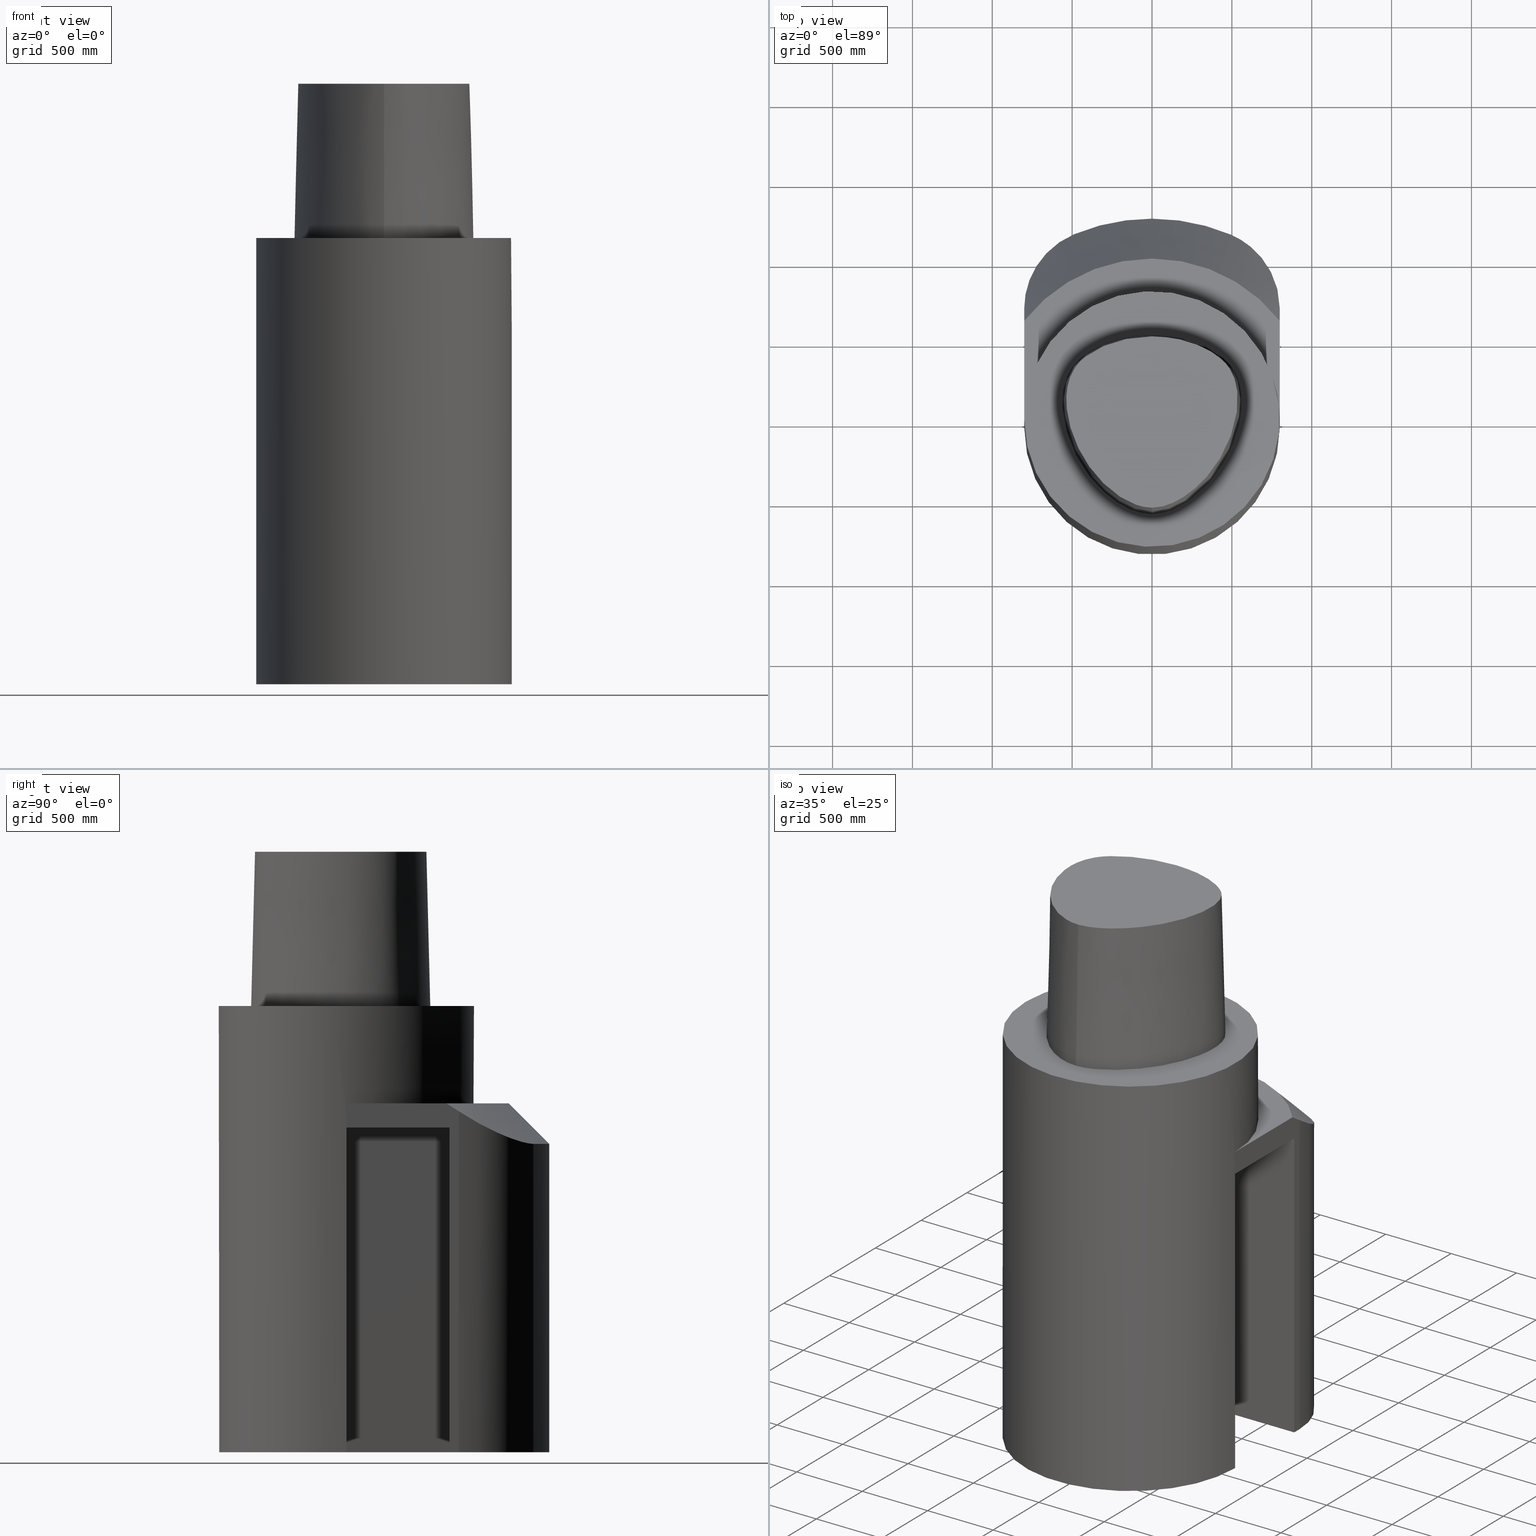
[diagram: canonical four-view strip — front | top / right | iso, engineering-drawing reading convention]
A machine part, canonical four-view strip (front | top / right | iso — engineering-drawing reading convention). The complete STEP part file that produces these views, byte-faithful:
ISO-10303-21;
HEADER;
FILE_DESCRIPTION((''),'1');
FILE_NAME('V:/01_Dxf_Field-HP\X2\FF71FF6FFF8CFF9F5916\X0\2013/BIGKAISER\X2\FF76FF80FF9BFF78FF9E63B28F095206\X0\_BKUS_201803/C6-BH/C6-180-BH1.000R-4.375.stp','2018-03-15T00:28:30',(''),(''),'Spatial Interop R21 SP3','Kubotek KeyCreator 2011 V10.0.2 (22737)',' ');
FILE_SCHEMA(('automotive_design'));
ENDSEC;
DATA;
#1=MECHANICAL_DESIGN_GEOMETRIC_PRESENTATION_REPRESENTATION(' ',(#10,#11,#12,#13,#14,#15,#16,#17,#18,#19,#20,#21,#22,#23,#24,#25,#26,#27,#28,#29,#30,#31,#32,#33,#34,#35,#36,#37,#38,#39,#40,#41,#42,#43,#44,#45,#46,#47,#48,#49,#50,#51,#52,#53,#54,#55,#56,#57,#58,#59,#60,#61,#62,#63,#64,#65,#66,#67,#68,#69,#70,#71,#72,#73),#6);
#2=PRODUCT_DEFINITION_CONTEXT('',#74,'design');
#3=APPLICATION_PROTOCOL_DEFINITION('INTERNATIONAL STANDARD','automotive_design',1994,#74);
#4=PRODUCT_CATEGORY_RELATIONSHIP('NONE','NONE',#75,#76);
#5=SHAPE_DEFINITION_REPRESENTATION(#77,#78);
#6= (GEOMETRIC_REPRESENTATION_CONTEXT(3)GLOBAL_UNCERTAINTY_ASSIGNED_CONTEXT((#81))GLOBAL_UNIT_ASSIGNED_CONTEXT((#83,#84,#85))REPRESENTATION_CONTEXT('NONE','WORKSPACE'));
#10=STYLED_ITEM('',(#87,#88),#89);
#11=STYLED_ITEM('',(#90),#91);
#12=STYLED_ITEM('',(#92,#93),#94);
#13=STYLED_ITEM('',(#95),#96);
#14=STYLED_ITEM('',(#97),#98);
#15=STYLED_ITEM('',(#99,#100),#101);
#16=STYLED_ITEM('',(#102),#103);
#17=STYLED_ITEM('',(#104),#105);
#18=STYLED_ITEM('',(#106,#107),#108);
#19=STYLED_ITEM('',(#109,#110),#111);
#20=STYLED_ITEM('',(#112,#113),#114);
#21=STYLED_ITEM('',(#115,#116),#117);
#22=STYLED_ITEM('',(#118),#119);
#23=STYLED_ITEM('',(#120),#121);
#24=STYLED_ITEM('',(#122),#123);
#25=STYLED_ITEM('',(#124),#125);
#26=STYLED_ITEM('',(#126,#127),#128);
#27=STYLED_ITEM('',(#129),#130);
#28=STYLED_ITEM('',(#131),#132);
#29=STYLED_ITEM('',(#133),#134);
#30=STYLED_ITEM('',(#135),#136);
#31=STYLED_ITEM('',(#137),#138);
#32=STYLED_ITEM('',(#139,#140),#141);
#33=STYLED_ITEM('',(#142),#143);
#34=STYLED_ITEM('',(#144,#145),#146);
#35=STYLED_ITEM('',(#147),#148);
#36=STYLED_ITEM('',(#149),#150);
#37=STYLED_ITEM('',(#151,#152),#153);
#38=STYLED_ITEM('',(#154),#155);
#39=STYLED_ITEM('',(#156,#157),#158);
#40=STYLED_ITEM('',(#159),#160);
#41=STYLED_ITEM('',(#161),#162);
#42=STYLED_ITEM('',(#163),#164);
#43=STYLED_ITEM('',(#165),#166);
#44=STYLED_ITEM('',(#167),#168);
#45=STYLED_ITEM('',(#169),#170);
#46=STYLED_ITEM('',(#171),#172);
#47=STYLED_ITEM('',(#173),#174);
#48=STYLED_ITEM('',(#175),#176);
#49=STYLED_ITEM('',(#177),#178);
#50=STYLED_ITEM('',(#179),#180);
#51=STYLED_ITEM('',(#181),#182);
#52=STYLED_ITEM('',(#183,#184),#185);
#53=STYLED_ITEM('',(#186,#187),#188);
#54=STYLED_ITEM('',(#189,#190),#191);
#55=STYLED_ITEM('',(#192),#193);
#56=STYLED_ITEM('',(#194),#195);
#57=STYLED_ITEM('',(#196,#197),#198);
#58=STYLED_ITEM('',(#199),#200);
#59=STYLED_ITEM('',(#201,#202),#203);
#60=STYLED_ITEM('',(#204),#205);
#61=STYLED_ITEM('',(#206),#207);
#62=STYLED_ITEM('',(#208,#209),#210);
#63=STYLED_ITEM('',(#211,#212),#213);
#64=STYLED_ITEM('',(#214),#215);
#65=STYLED_ITEM('',(#216,#217),#218);
#66=STYLED_ITEM('',(#219),#220);
#67=STYLED_ITEM('',(#221),#222);
#68=STYLED_ITEM('',(#223),#224);
#69=STYLED_ITEM('',(#225),#226);
#70=STYLED_ITEM('',(#227),#228);
#71=STYLED_ITEM('',(#229),#230);
#72=STYLED_ITEM('',(#231),#232);
#73=STYLED_ITEM('',(#233),#234);
#74=APPLICATION_CONTEXT(' ');
#75=PRODUCT_CATEGORY('part','NONE');
#76=PRODUCT_RELATED_PRODUCT_CATEGORY('detail',' ',(#235));
#77=PRODUCT_DEFINITION_SHAPE('NONE','NONE',#236);
#78=ADVANCED_BREP_SHAPE_REPRESENTATION('Unnamed[1]',(#108,#237),#6);
#81=UNCERTAINTY_MEASURE_WITH_UNIT(LENGTH_MEASURE(1.0E-006),#83,'','');
#83= (CONVERSION_BASED_UNIT('INCH',#240)LENGTH_UNIT()NAMED_UNIT(#243));
#84= (NAMED_UNIT(#245)PLANE_ANGLE_UNIT()SI_UNIT($,.RADIAN.));
#85= (NAMED_UNIT(#245)SOLID_ANGLE_UNIT()SI_UNIT($,.STERADIAN.));
#87=PRESENTATION_STYLE_ASSIGNMENT((#251));
#88=PRESENTATION_STYLE_ASSIGNMENT((#252));
#89=ADVANCED_FACE('Unnamed[1]',(#253),#254,.T.);
#90=PRESENTATION_STYLE_ASSIGNMENT((#255));
#91=EDGE_CURVE('Unnamed[1]',#256,#257,#258,.T.);
#92=PRESENTATION_STYLE_ASSIGNMENT((#259));
#93=PRESENTATION_STYLE_ASSIGNMENT((#260));
#94=ADVANCED_FACE('Unnamed[1]',(#261),#262,.T.);
#95=PRESENTATION_STYLE_ASSIGNMENT((#263));
#96=EDGE_CURVE('Unnamed[1]',#264,#265,#266,.T.);
#97=PRESENTATION_STYLE_ASSIGNMENT((#267));
#98=EDGE_CURVE('Unnamed[1]',#268,#269,#270,.T.);
#99=PRESENTATION_STYLE_ASSIGNMENT((#271));
#100=PRESENTATION_STYLE_ASSIGNMENT((#272));
#101=ADVANCED_FACE('Unnamed[1]',(#273),#274,.T.);
#102=PRESENTATION_STYLE_ASSIGNMENT((#275));
#103=EDGE_CURVE('Unnamed[1]',#276,#277,#278,.T.);
#104=PRESENTATION_STYLE_ASSIGNMENT((#279));
#105=EDGE_CURVE('Unnamed[1]',#280,#281,#282,.T.);
#106=PRESENTATION_STYLE_ASSIGNMENT((#283));
#107=PRESENTATION_STYLE_ASSIGNMENT((#284));
#108=MANIFOLD_SOLID_BREP('Unnamed[1]',#285);
#109=PRESENTATION_STYLE_ASSIGNMENT((#286));
#110=PRESENTATION_STYLE_ASSIGNMENT((#287));
#111=ADVANCED_FACE('Unnamed[1]',(#288),#289,.T.);
#112=PRESENTATION_STYLE_ASSIGNMENT((#290));
#113=PRESENTATION_STYLE_ASSIGNMENT((#291));
#114=ADVANCED_FACE('Unnamed[1]',(#292),#293,.T.);
#115=PRESENTATION_STYLE_ASSIGNMENT((#294));
#116=PRESENTATION_STYLE_ASSIGNMENT((#295));
#117=ADVANCED_FACE('Unnamed[1]',(#296),#297,.T.);
#118=PRESENTATION_STYLE_ASSIGNMENT((#298));
#119=EDGE_CURVE('Unnamed[1]',#299,#300,#301,.T.);
#120=PRESENTATION_STYLE_ASSIGNMENT((#302));
#121=EDGE_CURVE('Unnamed[1]',#265,#303,#304,.T.);
#122=PRESENTATION_STYLE_ASSIGNMENT((#305));
#123=EDGE_CURVE('Unnamed[1]',#306,#281,#307,.T.);
#124=PRESENTATION_STYLE_ASSIGNMENT((#308));
#125=EDGE_CURVE('Unnamed[1]',#309,#303,#310,.T.);
#126=PRESENTATION_STYLE_ASSIGNMENT((#311));
#127=PRESENTATION_STYLE_ASSIGNMENT((#312));
#128=ADVANCED_FACE('Unnamed[1]',(#313),#314,.T.);
#129=PRESENTATION_STYLE_ASSIGNMENT((#315));
#130=EDGE_CURVE('Unnamed[1]',#316,#317,#318,.T.);
#131=PRESENTATION_STYLE_ASSIGNMENT((#319));
#132=EDGE_CURVE('Unnamed[1]',#281,#320,#321,.T.);
#133=PRESENTATION_STYLE_ASSIGNMENT((#322));
#134=EDGE_CURVE('Unnamed[1]',#323,#309,#324,.T.);
#135=PRESENTATION_STYLE_ASSIGNMENT((#325));
#136=EDGE_CURVE('Unnamed[1]',#326,#320,#327,.T.);
#137=PRESENTATION_STYLE_ASSIGNMENT((#328));
#138=EDGE_CURVE('Unnamed[1]',#329,#330,#331,.T.);
#139=PRESENTATION_STYLE_ASSIGNMENT((#332));
#140=PRESENTATION_STYLE_ASSIGNMENT((#333));
#141=ADVANCED_FACE('Unnamed[1]',(#334),#335,.F.);
#142=PRESENTATION_STYLE_ASSIGNMENT((#336));
#143=EDGE_CURVE('Unnamed[1]',#337,#300,#338,.T.);
#144=PRESENTATION_STYLE_ASSIGNMENT((#339));
#145=PRESENTATION_STYLE_ASSIGNMENT((#340));
#146=ADVANCED_FACE('Unnamed[1]',(#341,#342),#343,.T.);
#147=PRESENTATION_STYLE_ASSIGNMENT((#344));
#148=EDGE_CURVE('Unnamed[1]',#257,#276,#345,.T.);
#149=PRESENTATION_STYLE_ASSIGNMENT((#346));
#150=EDGE_CURVE('Unnamed[1]',#280,#299,#347,.T.);
#151=PRESENTATION_STYLE_ASSIGNMENT((#348));
#152=PRESENTATION_STYLE_ASSIGNMENT((#349));
#153=ADVANCED_FACE('Unnamed[1]',(#350),#351,.T.);
#154=PRESENTATION_STYLE_ASSIGNMENT((#352));
#155=EDGE_CURVE('Unnamed[1]',#330,#265,#353,.T.);
#156=PRESENTATION_STYLE_ASSIGNMENT((#354));
#157=PRESENTATION_STYLE_ASSIGNMENT((#355));
#158=ADVANCED_FACE('Unnamed[1]',(#356),#357,.T.);
#159=PRESENTATION_STYLE_ASSIGNMENT((#358));
#160=EDGE_CURVE('Unnamed[1]',#257,#256,#359,.T.);
#161=PRESENTATION_STYLE_ASSIGNMENT((#360));
#162=EDGE_CURVE('Unnamed[1]',#264,#329,#361,.T.);
#163=PRESENTATION_STYLE_ASSIGNMENT((#362));
#164=EDGE_CURVE('Unnamed[1]',#306,#337,#363,.T.);
#165=PRESENTATION_STYLE_ASSIGNMENT((#364));
#166=EDGE_CURVE('Unnamed[1]',#268,#326,#365,.T.);
#167=PRESENTATION_STYLE_ASSIGNMENT((#366));
#168=EDGE_CURVE('Unnamed[1]',#329,#323,#367,.T.);
#169=PRESENTATION_STYLE_ASSIGNMENT((#368));
#170=EDGE_CURVE('Unnamed[1]',#309,#369,#370,.T.);
#171=PRESENTATION_STYLE_ASSIGNMENT((#371));
#172=EDGE_CURVE('Unnamed[1]',#316,#269,#372,.T.);
#173=PRESENTATION_STYLE_ASSIGNMENT((#373));
#174=EDGE_CURVE('Unnamed[1]',#323,#268,#374,.T.);
#175=PRESENTATION_STYLE_ASSIGNMENT((#375));
#176=EDGE_CURVE('Unnamed[1]',#369,#317,#376,.T.);
#177=PRESENTATION_STYLE_ASSIGNMENT((#377));
#178=EDGE_CURVE('Unnamed[1]',#256,#277,#378,.T.);
#179=PRESENTATION_STYLE_ASSIGNMENT((#379));
#180=EDGE_CURVE('Unnamed[1]',#380,#276,#381,.T.);
#181=PRESENTATION_STYLE_ASSIGNMENT((#382));
#182=EDGE_CURVE('Unnamed[1]',#337,#280,#383,.T.);
#183=PRESENTATION_STYLE_ASSIGNMENT((#384));
#184=PRESENTATION_STYLE_ASSIGNMENT((#385));
#185=ADVANCED_FACE('Unnamed[1]',(#386,#387),#388,.T.);
#186=PRESENTATION_STYLE_ASSIGNMENT((#389));
#187=PRESENTATION_STYLE_ASSIGNMENT((#390));
#188=ADVANCED_FACE('Unnamed[1]',(#391),#392,.F.);
#189=PRESENTATION_STYLE_ASSIGNMENT((#393));
#190=PRESENTATION_STYLE_ASSIGNMENT((#394));
#191=ADVANCED_FACE('Unnamed[1]',(#395),#396,.F.);
#192=PRESENTATION_STYLE_ASSIGNMENT((#397));
#193=EDGE_CURVE('Unnamed[1]',#398,#264,#399,.T.);
#194=PRESENTATION_STYLE_ASSIGNMENT((#400));
#195=EDGE_CURVE('Unnamed[1]',#269,#369,#401,.T.);
#196=PRESENTATION_STYLE_ASSIGNMENT((#402));
#197=PRESENTATION_STYLE_ASSIGNMENT((#403));
#198=ADVANCED_FACE('Unnamed[1]',(#404),#405,.F.);
#199=PRESENTATION_STYLE_ASSIGNMENT((#406));
#200=EDGE_CURVE('Unnamed[1]',#407,#299,#408,.T.);
#201=PRESENTATION_STYLE_ASSIGNMENT((#409));
#202=PRESENTATION_STYLE_ASSIGNMENT((#410));
#203=ADVANCED_FACE('Unnamed[1]',(#411),#412,.F.);
#204=PRESENTATION_STYLE_ASSIGNMENT((#413));
#205=EDGE_CURVE('Unnamed[1]',#256,#380,#414,.T.);
#206=PRESENTATION_STYLE_ASSIGNMENT((#415));
#207=EDGE_CURVE('Unnamed[1]',#303,#398,#416,.T.);
#208=PRESENTATION_STYLE_ASSIGNMENT((#417));
#209=PRESENTATION_STYLE_ASSIGNMENT((#418));
#210=ADVANCED_FACE('Unnamed[1]',(#419),#420,.T.);
#211=PRESENTATION_STYLE_ASSIGNMENT((#421));
#212=PRESENTATION_STYLE_ASSIGNMENT((#422));
#213=ADVANCED_FACE('Unnamed[1]',(#423),#424,.F.);
#214=PRESENTATION_STYLE_ASSIGNMENT((#425));
#215=EDGE_CURVE('Unnamed[1]',#426,#407,#427,.T.);
#216=PRESENTATION_STYLE_ASSIGNMENT((#428));
#217=PRESENTATION_STYLE_ASSIGNMENT((#429));
#218=ADVANCED_FACE('Unnamed[1]',(#430),#431,.T.);
#219=PRESENTATION_STYLE_ASSIGNMENT((#432));
#220=EDGE_CURVE('Unnamed[1]',#317,#407,#433,.T.);
#221=PRESENTATION_STYLE_ASSIGNMENT((#434));
#222=EDGE_CURVE('Unnamed[1]',#326,#306,#435,.T.);
#223=PRESENTATION_STYLE_ASSIGNMENT((#436));
#224=EDGE_CURVE('Unnamed[1]',#320,#316,#437,.T.);
#225=PRESENTATION_STYLE_ASSIGNMENT((#438));
#226=EDGE_CURVE('Unnamed[1]',#277,#380,#439,.T.);
#227=PRESENTATION_STYLE_ASSIGNMENT((#440));
#228=EDGE_CURVE('Unnamed[1]',#300,#426,#441,.T.);
#229=PRESENTATION_STYLE_ASSIGNMENT((#442));
#230=EDGE_CURVE('Unnamed[1]',#426,#398,#443,.T.);
#231=PRESENTATION_STYLE_ASSIGNMENT((#444));
#232=EDGE_CURVE('Unnamed[1]',#309,#330,#445,.T.);
#233=PRESENTATION_STYLE_ASSIGNMENT((#446));
#234=EDGE_CURVE('Unnamed[1]',#447,#447,#448,.T.);
#235=PRODUCT('Unnamed[1]','Unnamed[1]','PART-Unnamed[1]-DESC',(#449));
#236=PRODUCT_DEFINITION('NONE','NONE',#450,#2);
#237=AXIS2_PLACEMENT_3D('',#451,#452,#453);
#240=LENGTH_MEASURE_WITH_UNIT(LENGTH_MEASURE(25.4),#454);
#243=DIMENSIONAL_EXPONENTS(1.0,0.0,0.0,0.0,0.0,0.0,0.0);
#245=DIMENSIONAL_EXPONENTS(0.0,0.0,0.0,0.0,0.0,0.0,0.0);
#251=SURFACE_STYLE_USAGE(.BOTH.,#455);
#252=CURVE_STYLE('',#456,POSITIVE_LENGTH_MEASURE(1000.0),#457);
#253=FACE_OUTER_BOUND('',#458,.T.);
#254=CONICAL_SURFACE('',#459,1.0,0.0249931148600041);
#255=CURVE_STYLE('',#460,POSITIVE_LENGTH_MEASURE(1000.0),#461);
#256=VERTEX_POINT('',#462);
#257=VERTEX_POINT('',#463);
#258=B_SPLINE_CURVE_WITH_KNOTS('',3,(#464,#465,#466,#467,#468,#469,#470,#471,#472,#473,#474,#475,#476,#477,#478,#479),.UNSPECIFIED.,.F.,.F.,(4,1,1,1,1,1,1,1,1,1,1,1,1,4),(0.0,0.447924670568964,0.9388024242536,1.50591409090711,2.07314340012323,2.72424957442464,3.2253501842849,3.80982102049476,4.34867996267067,4.85900173381144,5.37972031856977,6.03459825488646,6.61113557741484,6.61513393087395),.UNSPECIFIED.);
#259=SURFACE_STYLE_USAGE(.BOTH.,#480);
#260=CURVE_STYLE('',#481,POSITIVE_LENGTH_MEASURE(1000.0),#482);
#261=FACE_OUTER_BOUND('',#483,.T.);
#262=B_SPLINE_SURFACE_WITH_KNOTS('',3,3,((#484,#485,#486,#487),(#488,#489,#490,#491),(#492,#493,#494,#495),(#496,#497,#498,#499),(#500,#501,#502,#503),(#504,#505,#506,#507),(#508,#509,#510,#511),(#512,#513,#514,#515),(#516,#517,#518,#519),(#520,#521,#522,#523),(#524,#525,#526,#527),(#528,#529,#530,#531),(#532,#533,#534,#535),(#536,#537,#538,#539),(#540,#541,#542,#543),(#544,#545,#546,#547),(#548,#549,#550,#551)),.UNSPECIFIED.,.F.,.F.,.F.,(4,1,1,1,1,1,1,1,1,1,1,1,1,1,4),(4,4),(-13.2302678617486,-12.816821991069,-12.4033761203893,-11.9899302497097,-11.57648437903,-11.1630385083504,-10.9563155730106,-10.7495926376707,-10.3361467669911,-9.92270089631145,-9.09580915495216,-8.26891741359287,-7.44202567223358,-7.02857980155394,-6.6151339308743),(-3.8,0.0),.UNSPECIFIED.);
#263=CURVE_STYLE('',#552,POSITIVE_LENGTH_MEASURE(1000.0),#553);
#264=VERTEX_POINT('',#554);
#265=VERTEX_POINT('',#555);
#266=LINE('',#556,#557);
#267=CURVE_STYLE('',#558,POSITIVE_LENGTH_MEASURE(1000.0),#559);
#268=VERTEX_POINT('',#560);
#269=VERTEX_POINT('',#561);
#270=LINE('',#562,#563);
#271=SURFACE_STYLE_USAGE(.BOTH.,#564);
#272=CURVE_STYLE('',#565,POSITIVE_LENGTH_MEASURE(1000.0),#566);
#273=FACE_OUTER_BOUND('',#567,.T.);
#274=CYLINDRICAL_SURFACE('',#568,20.0);
#275=CURVE_STYLE('',#569,POSITIVE_LENGTH_MEASURE(1000.0),#570);
#276=VERTEX_POINT('',#571);
#277=VERTEX_POINT('',#572);
#278=B_SPLINE_CURVE_WITH_KNOTS('',3,(#573,#574,#575,#576,#577,#578,#579,#580,#581,#582,#583,#584,#585,#586,#587,#588,#589,#590),.UNSPECIFIED.,.F.,.F.,(4,1,1,1,1,1,1,1,1,2,1,1,1,1,4),(-6.6151339308743,-6.20168806019465,-5.78824218951501,-5.37479631883537,-4.96135044815572,-4.13445870679644,-3.30756696543715,-2.89412109475751,-2.48067522407786,-2.06722935339822,-1.65378348271857,-1.24033761203893,-0.826891741359287,-0.413445870679644,0.0),.UNSPECIFIED.);
#279=CURVE_STYLE('',#591,POSITIVE_LENGTH_MEASURE(1000.0),#592);
#280=VERTEX_POINT('',#593);
#281=VERTEX_POINT('',#594);
#282=B_SPLINE_CURVE_WITH_KNOTS('',3,(#595,#596,#597,#598,#599,#600,#601,#602,#603,#604,#605,#606,#607,#608),.UNSPECIFIED.,.F.,.F.,(4,2,2,2,2,2,4),(221.307613234184,226.016355747649,230.724780710334,235.433205673018,240.141630635702,244.850055598386,249.55848056107),.UNSPECIFIED.);
#283=SURFACE_STYLE_USAGE(.BOTH.,#609);
#284=CURVE_STYLE('',#610,POSITIVE_LENGTH_MEASURE(1000.0),#611);
#285=CLOSED_SHELL('',(#94,#111,#89,#158,#188,#213,#141,#203,#198,#218,#101,#191,#128,#114,#185,#146,#153,#117,#210));
#286=SURFACE_STYLE_USAGE(.BOTH.,#612);
#287=CURVE_STYLE('',#613,POSITIVE_LENGTH_MEASURE(1000.0),#614);
#288=FACE_OUTER_BOUND('',#615,.T.);
#289=B_SPLINE_SURFACE_WITH_KNOTS('',3,3,((#616,#617,#618,#619),(#620,#621,#622,#623),(#624,#625,#626,#627),(#628,#629,#630,#631),(#632,#633,#634,#635),(#636,#637,#638,#639),(#640,#641,#642,#643),(#644,#645,#646,#647),(#648,#649,#650,#651),(#652,#653,#654,#655),(#656,#657,#658,#659),(#660,#661,#662,#663),(#664,#665,#666,#667),(#668,#669,#670,#671),(#672,#673,#674,#675),(#676,#677,#678,#679),(#680,#681,#682,#683),(#684,#685,#686,#687)),.UNSPECIFIED.,.F.,.F.,.F.,(4,1,1,1,1,1,1,1,1,2,1,1,1,1,4),(4,4),(-6.6151339308743,-6.20168806019465,-5.78824218951501,-5.37479631883537,-4.96135044815572,-4.13445870679644,-3.30756696543715,-2.89412109475751,-2.48067522407786,-2.06722935339822,-1.65378348271857,-1.24033761203893,-0.826891741359287,-0.413445870679644,0.0),(-3.8,0.0),.UNSPECIFIED.);
#290=SURFACE_STYLE_USAGE(.BOTH.,#688);
#291=CURVE_STYLE('',#689,POSITIVE_LENGTH_MEASURE(1000.0),#690);
#292=FACE_OUTER_BOUND('',#691,.T.);
#293=PLANE('',#692);
#294=SURFACE_STYLE_USAGE(.BOTH.,#693);
#295=CURVE_STYLE('',#694,POSITIVE_LENGTH_MEASURE(1000.0),#695);
#296=FACE_OUTER_BOUND('',#696,.T.);
#297=CONICAL_SURFACE('',#697,45.0000000000013,0.785398163397416);
#298=CURVE_STYLE('',#698,POSITIVE_LENGTH_MEASURE(1000.0),#699);
#299=VERTEX_POINT('',#700);
#300=VERTEX_POINT('',#701);
#301=LINE('',#702,#703);
#302=CURVE_STYLE('',#704,POSITIVE_LENGTH_MEASURE(1000.0),#705);
#303=VERTEX_POINT('',#706);
#304=LINE('',#707,#708);
#305=CURVE_STYLE('',#709,POSITIVE_LENGTH_MEASURE(1000.0),#710);
#306=VERTEX_POINT('',#711);
#307=LINE('',#712,#713);
#308=CURVE_STYLE('',#714,POSITIVE_LENGTH_MEASURE(1000.0),#715);
#309=VERTEX_POINT('',#716);
#310=LINE('',#717,#718);
#311=SURFACE_STYLE_USAGE(.BOTH.,#719);
#312=CURVE_STYLE('',#720,POSITIVE_LENGTH_MEASURE(1000.0),#721);
#313=FACE_OUTER_BOUND('',#722,.T.);
#314=CYLINDRICAL_SURFACE('',#723,20.0);
#315=CURVE_STYLE('',#724,POSITIVE_LENGTH_MEASURE(1000.0),#725);
#316=VERTEX_POINT('',#726);
#317=VERTEX_POINT('',#727);
#318=CIRCLE('',#728,40.000000000002);
#319=CURVE_STYLE('',#729,POSITIVE_LENGTH_MEASURE(1000.0),#730);
#320=VERTEX_POINT('',#731);
#321=B_SPLINE_CURVE_WITH_KNOTS('',3,(#732,#733,#734,#735,#736,#737,#738,#739,#740,#741,#742,#743,#744,#745,#746,#747),.UNSPECIFIED.,.F.,.F.,(4,2,2,2,2,2,2,4),(29.0020988864993,32.2557682753033,35.5094376641073,38.7631070529113,42.0167764417153,46.0136317745361,50.010487107357,54.0073424401778),.UNSPECIFIED.);
#322=CURVE_STYLE('',#748,POSITIVE_LENGTH_MEASURE(1000.0),#749);
#323=VERTEX_POINT('',#750);
#324=LINE('',#751,#752);
#325=CURVE_STYLE('',#753,POSITIVE_LENGTH_MEASURE(1000.0),#754);
#326=VERTEX_POINT('',#755);
#327=LINE('',#756,#757);
#328=CURVE_STYLE('',#758,POSITIVE_LENGTH_MEASURE(1000.0),#759);
#329=VERTEX_POINT('',#760);
#330=VERTEX_POINT('',#761);
#331=LINE('',#762,#763);
#332=SURFACE_STYLE_USAGE(.BOTH.,#764);
#333=CURVE_STYLE('',#765,POSITIVE_LENGTH_MEASURE(1000.0),#766);
#334=FACE_OUTER_BOUND('',#767,.T.);
#335=PLANE('',#768);
#336=CURVE_STYLE('',#769,POSITIVE_LENGTH_MEASURE(1000.0),#770);
#337=VERTEX_POINT('',#771);
#338=CIRCLE('',#772,50.0000000000007);
#339=SURFACE_STYLE_USAGE(.BOTH.,#773);
#340=CURVE_STYLE('',#774,POSITIVE_LENGTH_MEASURE(1000.0),#775);
#341=FACE_BOUND('',#776,.T.);
#342=FACE_BOUND('',#777,.T.);
#343=CYLINDRICAL_SURFACE('',#778,31.5);
#344=CURVE_STYLE('',#779,POSITIVE_LENGTH_MEASURE(1000.0),#780);
#345=LINE('',#781,#782);
#346=CURVE_STYLE('',#783,POSITIVE_LENGTH_MEASURE(1000.0),#784);
#347=CIRCLE('',#785,50.0000000000006);
#348=SURFACE_STYLE_USAGE(.BOTH.,#786);
#349=CURVE_STYLE('',#787,POSITIVE_LENGTH_MEASURE(1000.0),#788);
#350=FACE_OUTER_BOUND('',#789,.T.);
#351=PLANE('',#790);
#352=CURVE_STYLE('',#791,POSITIVE_LENGTH_MEASURE(1000.0),#792);
#353=LINE('',#793,#794);
#354=SURFACE_STYLE_USAGE(.BOTH.,#795);
#355=CURVE_STYLE('',#796,POSITIVE_LENGTH_MEASURE(1000.0),#797);
#356=FACE_OUTER_BOUND('',#798,.T.);
#357=PLANE('',#799);
#358=CURVE_STYLE('',#800,POSITIVE_LENGTH_MEASURE(1000.0),#801);
#359=B_SPLINE_CURVE_WITH_KNOTS('',3,(#802,#803,#804,#805,#806,#807,#808,#809,#810,#811,#812,#813,#814,#815,#816,#817),.UNSPECIFIED.,.F.,.F.,(4,1,1,1,1,1,1,1,1,1,1,1,1,4),(6.61513393087476,6.99917207152274,7.48193246986995,7.96289324787093,8.45540287038584,9.10291653679981,9.67129810936083,10.1618749681153,10.6358867802489,11.1080734988593,11.6043706019633,12.09451993853,12.6985979284494,13.2302678617486),.UNSPECIFIED.);
#360=CURVE_STYLE('',#818,POSITIVE_LENGTH_MEASURE(1000.0),#819);
#361=LINE('',#820,#821);
#362=CURVE_STYLE('',#822,POSITIVE_LENGTH_MEASURE(1000.0),#823);
#363=CIRCLE('',#824,50.0);
#364=CURVE_STYLE('',#825,POSITIVE_LENGTH_MEASURE(1000.0),#826);
#365=LINE('',#827,#828);
#366=CURVE_STYLE('',#829,POSITIVE_LENGTH_MEASURE(1000.0),#830);
#367=LINE('',#831,#832);
#368=CURVE_STYLE('',#833,POSITIVE_LENGTH_MEASURE(1000.0),#834);
#369=VERTEX_POINT('',#835);
#370=LINE('',#836,#837);
#371=CURVE_STYLE('',#838,POSITIVE_LENGTH_MEASURE(1000.0),#839);
#372=LINE('',#840,#841);
#373=CURVE_STYLE('',#842,POSITIVE_LENGTH_MEASURE(1000.0),#843);
#374=CIRCLE('',#844,31.5);
#375=CURVE_STYLE('',#845,POSITIVE_LENGTH_MEASURE(1000.0),#846);
#376=LINE('',#847,#848);
#377=CURVE_STYLE('',#849,POSITIVE_LENGTH_MEASURE(1000.0),#850);
#378=LINE('',#851,#852);
#379=CURVE_STYLE('',#853,POSITIVE_LENGTH_MEASURE(1000.0),#854);
#380=VERTEX_POINT('',#855);
#381=B_SPLINE_CURVE_WITH_KNOTS('',3,(#856,#857,#858,#859,#860,#861,#862,#863,#864,#865,#866,#867,#868,#869,#870,#871,#872),.UNSPECIFIED.,.F.,.F.,(4,1,1,1,1,1,1,1,1,1,1,1,1,1,4),(-13.2302678617486,-12.816821991069,-12.4033761203893,-11.9899302497097,-11.57648437903,-11.1630385083504,-10.9563155730106,-10.7495926376707,-10.3361467669911,-9.92270089631145,-9.09580915495216,-8.26891741359287,-7.44202567223358,-7.02857980155394,-6.6151339308743),.UNSPECIFIED.);
#382=CURVE_STYLE('',#873,POSITIVE_LENGTH_MEASURE(1000.0),#874);
#383=LINE('',#875,#876);
#384=SURFACE_STYLE_USAGE(.BOTH.,#877);
#385=CURVE_STYLE('',#878,POSITIVE_LENGTH_MEASURE(1000.0),#879);
#386=FACE_BOUND('',#880,.T.);
#387=FACE_OUTER_BOUND('',#881,.T.);
#388=PLANE('',#882);
#389=SURFACE_STYLE_USAGE(.BOTH.,#883);
#390=CURVE_STYLE('',#884,POSITIVE_LENGTH_MEASURE(1000.0),#885);
#391=FACE_OUTER_BOUND('',#886,.T.);
#392=PLANE('',#887);
#393=SURFACE_STYLE_USAGE(.BOTH.,#888);
#394=CURVE_STYLE('',#889,POSITIVE_LENGTH_MEASURE(1000.0),#890);
#395=FACE_OUTER_BOUND('',#891,.T.);
#396=PLANE('',#892);
#397=CURVE_STYLE('',#893,POSITIVE_LENGTH_MEASURE(1000.0),#894);
#398=VERTEX_POINT('',#895);
#399=LINE('',#896,#897);
#400=CURVE_STYLE('',#898,POSITIVE_LENGTH_MEASURE(1000.0),#899);
#401=CIRCLE('',#900,31.5);
#402=SURFACE_STYLE_USAGE(.BOTH.,#901);
#403=CURVE_STYLE('',#902,POSITIVE_LENGTH_MEASURE(1000.0),#903);
#404=FACE_OUTER_BOUND('',#904,.T.);
#405=PLANE('',#905);
#406=CURVE_STYLE('',#906,POSITIVE_LENGTH_MEASURE(1000.0),#907);
#407=VERTEX_POINT('',#908);
#408=B_SPLINE_CURVE_WITH_KNOTS('',3,(#909,#910,#911,#912,#913,#914,#915,#916,#917,#918,#919,#920,#921,#922,#923,#924,#925,#926),.UNSPECIFIED.,.F.,.F.,(4,2,2,2,2,2,2,2,4),(3.99761286794242,7.99522573588484,11.9928386038273,15.9904514717697,19.2445758382191,22.4987002046684,25.7528245711178,29.0069489375672,32.2610733040166),.UNSPECIFIED.);
#409=SURFACE_STYLE_USAGE(.BOTH.,#927);
#410=CURVE_STYLE('',#928,POSITIVE_LENGTH_MEASURE(1000.0),#929);
#411=FACE_OUTER_BOUND('',#930,.T.);
#412=PLANE('',#931);
#413=CURVE_STYLE('',#932,POSITIVE_LENGTH_MEASURE(1000.0),#933);
#414=LINE('',#934,#935);
#415=CURVE_STYLE('',#936,POSITIVE_LENGTH_MEASURE(1000.0),#937);
#416=LINE('',#938,#939);
#417=SURFACE_STYLE_USAGE(.BOTH.,#940);
#418=CURVE_STYLE('',#941,POSITIVE_LENGTH_MEASURE(1000.0),#942);
#419=FACE_OUTER_BOUND('',#943,.T.);
#420=CYLINDRICAL_SURFACE('',#944,50.0000000000007);
#421=SURFACE_STYLE_USAGE(.BOTH.,#945);
#422=CURVE_STYLE('',#946,POSITIVE_LENGTH_MEASURE(1000.0),#947);
#423=FACE_OUTER_BOUND('',#948,.T.);
#424=PLANE('',#949);
#425=CURVE_STYLE('',#950,POSITIVE_LENGTH_MEASURE(1000.0),#951);
#426=VERTEX_POINT('',#952);
#427=LINE('',#953,#954);
#428=SURFACE_STYLE_USAGE(.BOTH.,#955);
#429=CURVE_STYLE('',#956,POSITIVE_LENGTH_MEASURE(1000.0),#957);
#430=FACE_OUTER_BOUND('',#958,.T.);
#431=CYLINDRICAL_SURFACE('',#959,50.0);
#432=CURVE_STYLE('',#960,POSITIVE_LENGTH_MEASURE(1000.0),#961);
#433=(B_SPLINE_CURVE(2,(#963,#964,#965),.UNSPECIFIED.,.F.,.F.)B_SPLINE_CURVE_WITH_KNOTS((3,3),(0.0,17.3552936339432),.UNSPECIFIED.)RATIONAL_B_SPLINE_CURVE((1.0,1.01264270198955,1.0))BOUNDED_CURVE()REPRESENTATION_ITEM('')GEOMETRIC_REPRESENTATION_ITEM()CURVE());
#434=CURVE_STYLE('',#972,POSITIVE_LENGTH_MEASURE(1000.0),#973);
#435=CIRCLE('',#974,20.0);
#436=CURVE_STYLE('',#975,POSITIVE_LENGTH_MEASURE(1000.0),#976);
#437=(B_SPLINE_CURVE(2,(#978,#979,#980),.UNSPECIFIED.,.F.,.F.)B_SPLINE_CURVE_WITH_KNOTS((3,3),(0.0,17.3552936339431),.UNSPECIFIED.)RATIONAL_B_SPLINE_CURVE((1.0,1.01264270198955,1.0))BOUNDED_CURVE()REPRESENTATION_ITEM('')GEOMETRIC_REPRESENTATION_ITEM()CURVE());
#438=CURVE_STYLE('',#987,POSITIVE_LENGTH_MEASURE(1000.0),#988);
#439=CIRCLE('',#989,0.949936168436318);
#440=CURVE_STYLE('',#990,POSITIVE_LENGTH_MEASURE(1000.0),#991);
#441=CIRCLE('',#992,20.0);
#442=CURVE_STYLE('',#993,POSITIVE_LENGTH_MEASURE(1000.0),#994);
#443=LINE('',#995,#996);
#444=CURVE_STYLE('',#997,POSITIVE_LENGTH_MEASURE(1000.0),#998);
#445=LINE('',#999,#1000);
#446=CURVE_STYLE('',#1001,POSITIVE_LENGTH_MEASURE(1000.0),#1002);
#447=VERTEX_POINT('',#1003);
#448=CIRCLE('',#1004,31.5);
#449=PRODUCT_CONTEXT('',#74,'mechanical');
#450=PRODUCT_DEFINITION_FORMATION_WITH_SPECIFIED_SOURCE(' ','NONE',#235,.NOT_KNOWN.);
#451=CARTESIAN_POINT('',(0.0,0.0,0.0));
#452=DIRECTION('',(0.0,0.0,1.0));
#453=DIRECTION('',(1.0,0.0,0.0));
#454= (NAMED_UNIT(#243)LENGTH_UNIT()SI_UNIT(.MILLI.,.METRE.));
#455=SURFACE_SIDE_STYLE('',(#1006));
#456=DRAUGHTING_PRE_DEFINED_CURVE_FONT('continuous');
#457=COLOUR_RGB('',0.0,1.0,0.0);
#458=EDGE_LOOP('',(#1007,#1008,#1009));
#459=AXIS2_PLACEMENT_3D('',#1010,#1011,#1012);
#460=DRAUGHTING_PRE_DEFINED_CURVE_FONT('continuous');
#461=COLOUR_RGB('',0.0,1.0,0.0);
#462=CARTESIAN_POINT('',(-0.001218547003662,19.7276821925089,38.0));
#463=CARTESIAN_POINT('',(0.038736923393866,-22.5191997536361,38.0));
#464=CARTESIAN_POINT('',(-0.001218547003662,19.7276821925089,38.0));
#465=CARTESIAN_POINT('',(-1.49408492138443,19.6585333605309,38.0));
#466=CARTESIAN_POINT('',(-4.62297391420352,19.513604770166,38.0));
#467=CARTESIAN_POINT('',(-9.56160616752212,18.4291575730197,38.0));
#468=CARTESIAN_POINT('',(-14.5427684976927,16.2697452580488,38.0));
#469=CARTESIAN_POINT('',(-19.4315563551602,12.5302108980807,38.0));
#470=CARTESIAN_POINT('',(-21.306358833612,6.76352894547076,38.0));
#471=CARTESIAN_POINT('',(-21.0724946936277,0.957075236984038,38.0));
#472=CARTESIAN_POINT('',(-19.7876470880144,-4.34628503581652,38.0));
#473=CARTESIAN_POINT('',(-17.5396999600095,-9.33314444653089,38.0));
#474=CARTESIAN_POINT('',(-14.645447733857,-13.7185760345629,38.0));
#475=CARTESIAN_POINT('',(-10.7996726536643,-17.856257282137,38.0));
#476=CARTESIAN_POINT('',(-6.00479510196376,-21.2687382067675,38.0));
#477=CARTESIAN_POINT('',(-1.90747171908525,-22.5250621415864,38.0));
#478=CARTESIAN_POINT('',(0.025424107066464,-22.5192678176378,38.0));
#479=CARTESIAN_POINT('',(0.038736923394311,-22.519199753636,38.0));
#480=SURFACE_SIDE_STYLE('',(#1013));
#481=DRAUGHTING_PRE_DEFINED_CURVE_FONT('continuous');
#482=COLOUR_RGB('',0.0,1.0,0.0);
#483=EDGE_LOOP('',(#1014,#1015,#1016,#1017));
#484=CARTESIAN_POINT('',(-0.001218367817519,19.7276822012873,38.0));
#485=CARTESIAN_POINT('',(0.014082083248157,20.0439577123075,25.3333333333066));
#486=CARTESIAN_POINT('',(0.029382534313671,20.3602332232908,12.6666666666934));
#487=CARTESIAN_POINT('',(0.044682985379347,20.6765087343109,0.0));
#488=CARTESIAN_POINT('',(1.37788651195108,19.6609652834875,38.0));
#489=CARTESIAN_POINT('',(1.3931885827258,19.9772407169847,25.3333333333066));
#490=CARTESIAN_POINT('',(1.40849065356095,20.2935162254648,12.6666666666934));
#491=CARTESIAN_POINT('',(1.42379272427753,20.6097915814392,-1.97215226305253E-031));
#492=CARTESIAN_POINT('',(4.135446440878,19.5347778787784,38.0));
#493=CARTESIAN_POINT('',(4.16466278851883,19.8511031866125,25.3333333333066));
#494=CARTESIAN_POINT('',(4.1938791526746,20.1674284644204,12.6666666666934));
#495=CARTESIAN_POINT('',(4.2230955003445,20.4837538303966,-1.97215226305253E-031));
#496=CARTESIAN_POINT('',(8.213607363795,18.7706026638736,38.0));
#497=CARTESIAN_POINT('',(8.29980745008421,19.0767495109635,25.3333333333066));
#498=CARTESIAN_POINT('',(8.38600751285747,19.3828964329996,12.6666666666934));
#499=CARTESIAN_POINT('',(8.47220762821777,19.6890432607088,0.0));
#500=CARTESIAN_POINT('',(12.1316338645671,17.3698624840857,38.0));
#501=CARTESIAN_POINT('',(12.2591308270381,17.6610739397708,25.3333333333066));
#502=CARTESIAN_POINT('',(12.3866278083543,17.9522853923553,12.6666666666934));
#503=CARTESIAN_POINT('',(12.5141247708253,18.2434968480404,-1.97215226305253E-031));
#504=CARTESIAN_POINT('',(15.7706546153679,15.3789501349612,38.0));
#505=CARTESIAN_POINT('',(15.9483905900895,15.6437731794811,25.3333333333066));
#506=CARTESIAN_POINT('',(16.1261265513272,15.9085961736944,12.6666666666934));
#507=CARTESIAN_POINT('',(16.3038624872874,16.1734192182143,-1.97215226305253E-031));
#508=CARTESIAN_POINT('',(18.4265894256284,13.0570022172893,38.0));
#509=CARTESIAN_POINT('',(18.6659567517146,13.2725589420689,25.3333333333066));
#510=CARTESIAN_POINT('',(18.9053240921419,13.4881156488541,12.6666666666934));
#511=CARTESIAN_POINT('',(19.1446913988473,13.7036723639434,-3.94430452610506E-031));
#512=CARTESIAN_POINT('',(19.8679958653038,10.6923771981998,38.0));
#513=CARTESIAN_POINT('',(20.1559937048299,10.8287388264873,25.3333333333066));
#514=CARTESIAN_POINT('',(20.4439915656177,10.965100461641,12.6666666666934));
#515=CARTESIAN_POINT('',(20.7319894342149,11.1014620996188,-1.97215226305253E-031));
#516=CARTESIAN_POINT('',(20.8470867582337,8.07149548576131,38.0));
#517=CARTESIAN_POINT('',(21.1591164072431,8.14132775555392,25.3333333333066));
#518=CARTESIAN_POINT('',(21.4711459821861,8.21116003697855,12.6666666666934));
#519=CARTESIAN_POINT('',(21.7831756505763,8.28099229708081,9.86076131526265E-032));
#520=CARTESIAN_POINT('',(21.2693244256982,4.61157245650171,38.0));
#521=CARTESIAN_POINT('',(21.5881576801997,4.6105997689982,25.3333333333066));
#522=CARTESIAN_POINT('',(21.9069908544037,4.60962709346857,12.6666666666934));
#523=CARTESIAN_POINT('',(22.2258240701438,4.60865440596506,-9.86076131526265E-032));
#524=CARTESIAN_POINT('',(20.8071610855575,-0.912828649855193,38.0));
#525=CARTESIAN_POINT('',(21.119311671178,-0.979640884839481,25.3333333333066));
#526=CARTESIAN_POINT('',(21.4314624224461,-1.04645306732201,12.6666666666934));
#527=CARTESIAN_POINT('',(21.7436130080666,-1.11326526354485,-2.46519032881566E-031));
#528=CARTESIAN_POINT('',(18.6841935581315,-7.54428794252837,38.0));
#529=CARTESIAN_POINT('',(18.9734452551861,-7.6809665891091,25.3333333333066));
#530=CARTESIAN_POINT('',(19.2626970689956,-7.81764505382656,12.6666666666934));
#531=CARTESIAN_POINT('',(19.5519487660502,-7.95432366164584,-5.91645678915759E-031));
#532=CARTESIAN_POINT('',(14.2175552814,-14.5971504342323,38.0));
#533=CARTESIAN_POINT('',(14.4641757465198,-14.8010930946929,25.3333333333066));
#534=CARTESIAN_POINT('',(14.710796247264,-15.0050359737917,12.6666666666934));
#535=CARTESIAN_POINT('',(14.9574167123838,-15.2089785567293,-3.94430452610506E-031));
#536=CARTESIAN_POINT('',(9.0844808732933,-19.3179298129689,38.0));
#537=CARTESIAN_POINT('',(9.27912152349017,-19.572866915557,25.3333333333066));
#538=CARTESIAN_POINT('',(9.47376218971294,-19.827804295621,12.6666666666934));
#539=CARTESIAN_POINT('',(9.66840283021945,-20.0827414369705,0.0));
#540=CARTESIAN_POINT('',(4.17112919194182,-21.8987568152736,38.0));
#541=CARTESIAN_POINT('',(4.28618163483998,-22.1973837173649,25.3333333333066));
#542=CARTESIAN_POINT('',(4.40123406239433,-22.4960105163661,12.6666666666934));
#543=CARTESIAN_POINT('',(4.51628650521788,-22.7946374572188,0.0));
#544=CARTESIAN_POINT('',(1.41533654381097,-22.5120888467812,38.0));
#545=CARTESIAN_POINT('',(1.46311520162011,-22.8284916374445,25.3333333333066));
#546=CARTESIAN_POINT('',(1.51089385942236,-23.144894486341,12.6666666666934));
#547=CARTESIAN_POINT('',(1.55867251738073,-23.4612972770043,-1.97215226305253E-031));
#548=CARTESIAN_POINT('',(0.038736923393866,-22.5191997536361,38.0));
#549=CARTESIAN_POINT('',(0.04035580478973,-22.8358410047159,25.3333333333066));
#550=CARTESIAN_POINT('',(0.041974686185626,-23.1524822558133,12.6666666666934));
#551=CARTESIAN_POINT('',(0.04359356758149,-23.4691235068931,-1.97215226305253E-031));
#552=DRAUGHTING_PRE_DEFINED_CURVE_FONT('continuous');
#553=COLOUR_RGB('',0.0,1.0,0.0);
#554=CARTESIAN_POINT('',(6.10000000000848,25.4,-110.00000000003));
#555=CARTESIAN_POINT('',(6.10000000000847,25.4,-29.9999999999993));
#556=CARTESIAN_POINT('',(6.10000000000849,25.4,-224.0));
#557=VECTOR('',#1018,1.0);
#558=DRAUGHTING_PRE_DEFINED_CURVE_FONT('continuous');
#559=COLOUR_RGB('',0.0,1.0,0.0);
#560=CARTESIAN_POINT('',(-31.5,8.23872083132104E-014,-110.000000000086));
#561=CARTESIAN_POINT('',(-31.5,4.31687996699442E-015,-24.0));
#562=CARTESIAN_POINT('',(-31.5,7.54067215580758E-014,-224.0));
#563=VECTOR('',#1019,1.0);
#564=SURFACE_SIDE_STYLE('',(#1020));
#565=DRAUGHTING_PRE_DEFINED_CURVE_FONT('continuous');
#566=COLOUR_RGB('',0.0,1.0,0.0);
#567=EDGE_LOOP('',(#1021,#1022,#1023,#1024));
#568=AXIS2_PLACEMENT_3D('',#1025,#1026,#1027);
#569=DRAUGHTING_PRE_DEFINED_CURVE_FONT('continuous');
#570=COLOUR_RGB('',0.0,1.0,0.0);
#571=CARTESIAN_POINT('',(0.04359356758149,-23.4691235068931,-1.97215226305253E-031));
#572=CARTESIAN_POINT('',(-0.045171994691285,20.6766009553285,-1.97215226305253E-031));
#573=CARTESIAN_POINT('',(0.04359356758149,-23.4691235068931,-1.97215226305253E-031));
#574=CARTESIAN_POINT('',(-1.4714994713963,-23.4767895315797,-1.97215226305253E-031));
#575=CARTESIAN_POINT('',(-4.43923476371401,-22.821149804767,0.0));
#576=CARTESIAN_POINT('',(-8.35043230079961,-20.8000751253325,0.0));
#577=CARTESIAN_POINT('',(-11.744900222602,-18.1556117874078,1.97215226305253E-031));
#578=CARTESIAN_POINT('',(-15.6989602501314,-14.0406306929147,-9.86076131526265E-032));
#579=CARTESIAN_POINT('',(-19.5352875070682,-8.00624990770787,-9.86076131526265E-032));
#580=CARTESIAN_POINT('',(-21.7205626190491,-1.16081708945282,2.71170936169723E-031));
#581=CARTESIAN_POINT('',(-22.2486616783342,4.54965558738736,3.94430452610506E-031));
#582=CARTESIAN_POINT('',(-21.6646421256468,9.00229539124618,3.94430452610506E-031));
#583=CARTESIAN_POINT('',(-20.3945635471922,11.7780544971003,-9.86076131526265E-032));
#584=CARTESIAN_POINT('',(-18.5925528034471,14.1980602922581,2.95822839457879E-031));
#585=CARTESIAN_POINT('',(-16.3226584122258,16.1777748720707,3.94430452610506E-031));
#586=CARTESIAN_POINT('',(-12.5076407874579,18.2524201541303,3.94430452610506E-031));
#587=CARTESIAN_POINT('',(-8.46776192107786,19.679114377952,-3.94430452610506E-031));
#588=CARTESIAN_POINT('',(-4.23043497193604,20.487781597334,1.97215226305253E-031));
#589=CARTESIAN_POINT('',(-1.42313094248379,20.6127745766442,0.0));
#590=CARTESIAN_POINT('',(-0.045171994691285,20.6766009553285,-1.97215226305253E-031));
#591=DRAUGHTING_PRE_DEFINED_CURVE_FONT('continuous');
#592=COLOUR_RGB('',0.0,1.0,0.0);
#593=CARTESIAN_POINT('',(0.00215974507375456,49.9999999533556,-33.9999999999993));
#594=CARTESIAN_POINT('',(-19.169546318746,46.1775147707605,-33.9983437372701));
#595=CARTESIAN_POINT('',(4.77367907535413,49.7720123064386,-34.000412207767));
#596=CARTESIAN_POINT('',(3.16605859430777,49.9260611345788,-34.0002733272821));
#597=CARTESIAN_POINT('',(1.5695808261077,50.0001354088224,-34.000135408821));
#598=CARTESIAN_POINT('',(-1.56947497584813,49.9998642271643,-33.999864227163));
#599=CARTESIAN_POINT('',(-3.16583398429016,49.9255241333956,-33.9997263178512));
#600=CARTESIAN_POINT('',(-6.38081301651384,49.6169115926764,-33.9994485749278));
#601=CARTESIAN_POINT('',(-7.999434114848,49.382650340007,-33.9993087412234));
#602=CARTESIAN_POINT('',(-11.2281103078048,48.7497563817976,-33.9990298126658));
#603=CARTESIAN_POINT('',(-12.8383320599856,48.3511002719221,-33.998890703415));
#604=CARTESIAN_POINT('',(-16.0210177916453,47.3914671794928,-33.9986157457312));
#605=CARTESIAN_POINT('',(-17.5934830443396,46.8304944196466,-33.9984798971886));
#606=CARTESIAN_POINT('',(-20.6730336621863,45.5546367378679,-33.9982138473621));
#607=CARTESIAN_POINT('',(-22.1814966518667,44.8391810661556,-33.9980835270624));
#608=CARTESIAN_POINT('',(-23.6459115898771,44.0529972922431,-33.9979570117273));
#609=SURFACE_SIDE_STYLE('',(#1028));
#610=DRAUGHTING_PRE_DEFINED_CURVE_FONT('continuous');
#611=COLOUR_RGB('',0.0,1.0,0.0);
#612=SURFACE_SIDE_STYLE('',(#1029));
#613=DRAUGHTING_PRE_DEFINED_CURVE_FONT('continuous');
#614=COLOUR_RGB('',0.0,1.0,0.0);
#615=EDGE_LOOP('',(#1030,#1031,#1032,#1033));
#616=CARTESIAN_POINT('',(0.038736923393866,-22.5191997536361,38.0));
#617=CARTESIAN_POINT('',(0.04035580478973,-22.8358410047159,25.3333333333066));
#618=CARTESIAN_POINT('',(0.041974686185626,-23.1524822558133,12.6666666666934));
#619=CARTESIAN_POINT('',(0.04359356758149,-23.4691235068931,-1.97215226305253E-031));
#620=CARTESIAN_POINT('',(-1.33786123484754,-22.5261650259856,38.0));
#621=CARTESIAN_POINT('',(-1.38240731367927,-22.8430399310626,25.3333333333066));
#622=CARTESIAN_POINT('',(-1.42695339249092,-23.1599147815484,12.6666666666934));
#623=CARTESIAN_POINT('',(-1.4714994713963,-23.4767895315797,-1.97215226305253E-031));
#624=CARTESIAN_POINT('',(-4.08909358431842,-21.9268839879558,38.0));
#625=CARTESIAN_POINT('',(-4.20580731135515,-22.2249725500078,25.3333333333066));
#626=CARTESIAN_POINT('',(-4.32252104640446,-22.5230611651922,12.6666666666934));
#627=CARTESIAN_POINT('',(-4.43923476371401,-22.821149804767,0.0));
#628=CARTESIAN_POINT('',(-7.8333083619947,-19.9973514861616,38.0));
#629=CARTESIAN_POINT('',(-8.00568301809614,-20.2649260859405,25.3333333333066));
#630=CARTESIAN_POINT('',(-8.1780576640789,-20.532500564315,12.6666666666934));
#631=CARTESIAN_POINT('',(-8.35043230079961,-20.8000751253325,0.0));
#632=CARTESIAN_POINT('',(-11.1035071147626,-17.450554957873,38.0));
#633=CARTESIAN_POINT('',(-11.3173048160562,-17.6855739222454,25.3333333333066));
#634=CARTESIAN_POINT('',(-11.5311025116181,-17.9205928617968,12.6666666666934));
#635=CARTESIAN_POINT('',(-11.744900222602,-18.1556117874078,1.97215226305253E-031));
#636=CARTESIAN_POINT('',(-14.9379535189057,-13.461132049697,38.0));
#637=CARTESIAN_POINT('',(-15.191622410671,-13.6542981711372,25.3333333333066));
#638=CARTESIAN_POINT('',(-15.4452913389853,-13.8474645327131,12.6666666666934));
#639=CARTESIAN_POINT('',(-15.6989602501314,-14.0406306929147,-9.86076131526265E-032));
#640=CARTESIAN_POINT('',(-18.6681263017223,-7.59391757463204,38.0));
#641=CARTESIAN_POINT('',(-18.9571800800711,-7.73136168081928,25.3333333333066));
#642=CARTESIAN_POINT('',(-19.2462337287194,-7.86880572399774,12.6666666666934));
#643=CARTESIAN_POINT('',(-19.5352875070682,-8.00624990770787,-9.86076131526265E-032));
#644=CARTESIAN_POINT('',(-20.7857899858339,-0.952862819790525,38.0));
#645=CARTESIAN_POINT('',(-21.0973808305434,-1.02218087467418,25.3333333333066));
#646=CARTESIAN_POINT('',(-21.408971677436,-1.09149899580772,12.6666666666934));
#647=CARTESIAN_POINT('',(-21.7205626190491,-1.16081708945282,2.71170936169723E-031));
#648=CARTESIAN_POINT('',(-21.2911760556836,4.5469215763113,38.0));
#649=CARTESIAN_POINT('',(-21.610337904926,4.54783292082248,25.3333333333066));
#650=CARTESIAN_POINT('',(-21.9294998290918,4.54874426225691,12.6666666666934));
#651=CARTESIAN_POINT('',(-22.2486616783342,4.54965558738736,3.94430452610506E-031));
#652=CARTESIAN_POINT('',(-20.7345309521958,8.74909381391006,38.0));
#653=CARTESIAN_POINT('',(-21.0445680426217,8.83349432450556,25.3333333333066));
#654=CARTESIAN_POINT('',(-21.3546050933631,8.91789488065068,12.6666666666934));
#655=CARTESIAN_POINT('',(-21.6646421256468,9.00229539124618,3.94430452610506E-031));
#656=CARTESIAN_POINT('',(-19.5531512296439,11.3174844040833,38.0));
#657=CARTESIAN_POINT('',(-19.8336219699984,11.4710077674213,25.3333333333066));
#658=CARTESIAN_POINT('',(-20.1140927680763,11.6245311337623,12.6666666666934));
#659=CARTESIAN_POINT('',(-20.3945635471922,11.7780544971003,-9.86076131526265E-032));
#660=CARTESIAN_POINT('',(-17.9100913688793,13.524027510437,38.0));
#661=CARTESIAN_POINT('',(-18.1375785458768,13.7487051053655,25.3333333333066));
#662=CARTESIAN_POINT('',(-18.365065665211,13.9733826973296,12.6666666666934));
#663=CARTESIAN_POINT('',(-18.5925528034471,14.1980602922581,2.95822839457879E-031));
#664=CARTESIAN_POINT('',(-15.7996349656398,15.3762170634413,38.0));
#665=CARTESIAN_POINT('',(-15.9739761051783,15.6434029846179,25.3333333333066));
#666=CARTESIAN_POINT('',(-16.1483172726872,15.9105889315134,12.6666666666934));
#667=CARTESIAN_POINT('',(-16.3226584122258,16.1777748720707,3.94430452610506E-031));
#668=CARTESIAN_POINT('',(-12.1175640002064,17.3825162484012,38.0));
#669=CARTESIAN_POINT('',(-12.2475895903055,17.6724842099619,25.3333333333066));
#670=CARTESIAN_POINT('',(-12.3776152070492,17.9624521925696,12.6666666666934));
#671=CARTESIAN_POINT('',(-12.5076407874579,18.2524201541303,3.94430452610506E-031));
#672=CARTESIAN_POINT('',(-8.21761151654222,18.7588585989994,38.0));
#673=CARTESIAN_POINT('',(-8.30099497910627,19.0656105427881,25.3333333333066));
#674=CARTESIAN_POINT('',(-8.38437843913309,19.3723624535439,12.6666666666934));
#675=CARTESIAN_POINT('',(-8.46776192107786,19.679114377952,-3.94430452610506E-031));
#676=CARTESIAN_POINT('',(-4.13466093881225,19.5396850837055,38.0));
#677=CARTESIAN_POINT('',(-4.16658562115465,19.8557172636973,25.3333333333066));
#678=CARTESIAN_POINT('',(-4.19851029939059,20.1717494367229,12.6666666666934));
#679=CARTESIAN_POINT('',(-4.23043497193604,20.487781597334,1.97215226305253E-031));
#680=CARTESIAN_POINT('',(-1.37917220403684,19.6638560588908,38.0));
#681=CARTESIAN_POINT('',(-1.39382511685176,19.98016223565,25.3333333333066));
#682=CARTESIAN_POINT('',(-1.40847802945569,20.296468399885,12.6666666666934));
#683=CARTESIAN_POINT('',(-1.42313094248379,20.6127745766442,0.0));
#684=CARTESIAN_POINT('',(-0.001218547003662,19.7276821925089,38.0));
#685=CARTESIAN_POINT('',(-0.015869696232855,20.043988446791,25.3333333333066));
#686=CARTESIAN_POINT('',(-0.030520845462092,20.3602947010464,12.6666666666934));
#687=CARTESIAN_POINT('',(-0.045171994691285,20.6766009553285,-1.97215226305253E-031));
#688=SURFACE_SIDE_STYLE('',(#1034));
#689=DRAUGHTING_PRE_DEFINED_CURVE_FONT('continuous');
#690=COLOUR_RGB('',0.0,1.0,0.0);
#691=EDGE_LOOP('',(#1035,#1036,#1037,#1038,#1039,#1040,#1041,#1042,#1043,#1044));
#692=AXIS2_PLACEMENT_3D('',#1045,#1046,#1047);
#693=SURFACE_SIDE_STYLE('',(#1048));
#694=DRAUGHTING_PRE_DEFINED_CURVE_FONT('continuous');
#695=COLOUR_RGB('',0.0,1.0,0.0);
#696=EDGE_LOOP('',(#1049,#1050,#1051,#1052,#1053,#1054,#1055));
#697=AXIS2_PLACEMENT_3D('',#1056,#1057,#1058);
#698=DRAUGHTING_PRE_DEFINED_CURVE_FONT('continuous');
#699=COLOUR_RGB('',0.0,1.0,0.0);
#700=CARTESIAN_POINT('',(19.4720041661765,46.0525900873389,-33.9999999999993));
#701=CARTESIAN_POINT('',(19.4720041661658,46.0525900873435,-110.000000000114));
#702=CARTESIAN_POINT('',(19.4720041661711,46.0525900873412,-224.0));
#703=VECTOR('',#1059,1.0);
#704=DRAUGHTING_PRE_DEFINED_CURVE_FONT('continuous');
#705=COLOUR_RGB('',0.0,1.0,0.0);
#706=CARTESIAN_POINT('',(31.5000000000001,25.4,-29.9999999999993));
#707=CARTESIAN_POINT('',(6.10000000000847,25.4,-29.9999999999992));
#708=VECTOR('',#1060,1.0);
#709=DRAUGHTING_PRE_DEFINED_CURVE_FONT('continuous');
#710=COLOUR_RGB('',0.0,1.0,0.0);
#711=CARTESIAN_POINT('',(-19.169546318746,46.1775147707605,-110.000000000068));
#712=CARTESIAN_POINT('',(-19.169546318746,46.1775147707605,-224.0));
#713=VECTOR('',#1061,1.0);
#714=DRAUGHTING_PRE_DEFINED_CURVE_FONT('continuous');
#715=COLOUR_RGB('',0.0,1.0,0.0);
#716=CARTESIAN_POINT('',(31.5,-7.62342632469223E-015,-29.9999999999993));
#717=CARTESIAN_POINT('',(31.5,6.92752358954325,-29.9999999999993));
#718=VECTOR('',#1062,1.0);
#719=SURFACE_SIDE_STYLE('',(#1063));
#720=DRAUGHTING_PRE_DEFINED_CURVE_FONT('continuous');
#721=COLOUR_RGB('',0.0,1.0,0.0);
#722=EDGE_LOOP('',(#1064,#1065,#1066,#1067));
#723=AXIS2_PLACEMENT_3D('',#1068,#1069,#1070);
#724=DRAUGHTING_PRE_DEFINED_CURVE_FONT('continuous');
#725=COLOUR_RGB('',0.0,1.0,0.0);
#726=CARTESIAN_POINT('',(-31.4999999999998,24.6525860712455,-24.0));
#727=CARTESIAN_POINT('',(31.5000000000001,24.6525860712451,-24.0));
#728=AXIS2_PLACEMENT_3D('',#1071,#1072,#1073);
#729=DRAUGHTING_PRE_DEFINED_CURVE_FONT('continuous');
#730=COLOUR_RGB('',0.0,1.0,0.0);
#731=CARTESIAN_POINT('',(-31.4999999999998,27.7065088624563,-25.9511696302404));
#732=CARTESIAN_POINT('',(-19.1670899300591,46.1785345230162,-33.9983438433739));
#733=CARTESIAN_POINT('',(-20.1687876707418,45.7627649262389,-33.9983438433739));
#734=CARTESIAN_POINT('',(-21.1697701190346,45.2500750327901,-33.9445702457791));
#735=CARTESIAN_POINT('',(-23.0874184455948,44.0470382876637,-33.7182271613307));
#736=CARTESIAN_POINT('',(-24.0041260234216,43.356752997074,-33.5456837693405));
#737=CARTESIAN_POINT('',(-25.6913906263684,41.8446750714735,-33.0896431678623));
#738=CARTESIAN_POINT('',(-26.463359937482,41.0217333989238,-32.8057572576399));
#739=CARTESIAN_POINT('',(-27.826692802136,39.3098035346397,-32.1507569772399));
#740=CARTESIAN_POINT('',(-28.4181286849675,38.420893460769,-31.7795889889911));
#741=CARTESIAN_POINT('',(-29.5254030342725,36.4601202044392,-30.9018447518449));
#742=CARTESIAN_POINT('',(-30.04246955808,35.3059537151176,-30.3451062098026));
#743=CARTESIAN_POINT('',(-30.8469485336613,32.9286082486609,-29.1069395953025));
#744=CARTESIAN_POINT('',(-31.1345513801991,31.7055286309925,-28.4254444635838));
#745=CARTESIAN_POINT('',(-31.4762891277182,29.2735751745386,-26.9734597059358));
#746=CARTESIAN_POINT('',(-31.5307709689678,28.0633682666182,-26.2020264842946));
#747=CARTESIAN_POINT('',(-31.4836714121862,26.8985008861559,-25.4095510180065));
#748=DRAUGHTING_PRE_DEFINED_CURVE_FONT('continuous');
#749=COLOUR_RGB('',0.0,1.0,0.0);
#750=CARTESIAN_POINT('',(31.5,5.68254859509968E-014,-109.999999999992));
#751=CARTESIAN_POINT('',(31.5,4.98449991958564E-014,-224.0));
#752=VECTOR('',#1074,1.0);
#753=DRAUGHTING_PRE_DEFINED_CURVE_FONT('continuous');
#754=COLOUR_RGB('',0.0,1.0,0.0);
#755=CARTESIAN_POINT('',(-31.4999999999998,27.7065088624563,-110.000000000086));
#756=CARTESIAN_POINT('',(-31.4999999999998,27.7065088624563,-224.0));
#757=VECTOR('',#1075,1.0);
#758=DRAUGHTING_PRE_DEFINED_CURVE_FONT('continuous');
#759=COLOUR_RGB('',0.0,1.0,0.0);
#760=CARTESIAN_POINT('',(6.10000000000847,2.05656002138704E-014,-110.00000000003));
#761=CARTESIAN_POINT('',(6.10000000000846,2.54641874104616E-014,-29.9999999999993));
#762=CARTESIAN_POINT('',(6.10000000000849,1.35851134587323E-014,-224.0));
#763=VECTOR('',#1076,1.0);
#764=SURFACE_SIDE_STYLE('',(#1077));
#765=DRAUGHTING_PRE_DEFINED_CURVE_FONT('continuous');
#766=COLOUR_RGB('',0.0,1.0,0.0);
#767=EDGE_LOOP('',(#1078,#1079,#1080,#1081));
#768=AXIS2_PLACEMENT_3D('',#1082,#1083,#1084);
#769=DRAUGHTING_PRE_DEFINED_CURVE_FONT('continuous');
#770=COLOUR_RGB('',0.0,1.0,0.0);
#771=CARTESIAN_POINT('',(0.00215974638974273,49.9999999533557,-110.000000000114));
#772=AXIS2_PLACEMENT_3D('',#1085,#1086,#1087);
#773=SURFACE_SIDE_STYLE('',(#1088));
#774=DRAUGHTING_PRE_DEFINED_CURVE_FONT('continuous');
#775=COLOUR_RGB('',0.0,1.0,0.0);
#776=EDGE_LOOP('',(#1089,#1090,#1091,#1092,#1093));
#777=EDGE_LOOP('',(#1094));
#778=AXIS2_PLACEMENT_3D('',#1095,#1096,#1097);
#779=DRAUGHTING_PRE_DEFINED_CURVE_FONT('continuous');
#780=COLOUR_RGB('',0.0,1.0,0.0);
#781=CARTESIAN_POINT('',(0.038736923393866,-22.5191997536361,38.0));
#782=VECTOR('',#1098,38.0118715498723);
#783=DRAUGHTING_PRE_DEFINED_CURVE_FONT('continuous');
#784=COLOUR_RGB('',0.0,1.0,0.0);
#785=AXIS2_PLACEMENT_3D('',#1099,#1100,#1101);
#786=SURFACE_SIDE_STYLE('',(#1102));
#787=DRAUGHTING_PRE_DEFINED_CURVE_FONT('continuous');
#788=COLOUR_RGB('',0.0,1.0,0.0);
#789=EDGE_LOOP('',(#1103,#1104,#1105,#1106));
#790=AXIS2_PLACEMENT_3D('',#1107,#1108,#1109);
#791=DRAUGHTING_PRE_DEFINED_CURVE_FONT('continuous');
#792=COLOUR_RGB('',0.0,1.0,0.0);
#793=CARTESIAN_POINT('',(6.10000000000846,2.54641874104616E-014,-29.9999999999993));
#794=VECTOR('',#1110,1.0);
#795=SURFACE_SIDE_STYLE('',(#1111));
#796=DRAUGHTING_PRE_DEFINED_CURVE_FONT('continuous');
#797=COLOUR_RGB('',0.0,1.0,0.0);
#798=EDGE_LOOP('',(#1112,#1113));
#799=AXIS2_PLACEMENT_3D('',#1114,#1115,#1116);
#800=DRAUGHTING_PRE_DEFINED_CURVE_FONT('continuous');
#801=COLOUR_RGB('',0.0,1.0,0.0);
#802=CARTESIAN_POINT('',(0.038736923394311,-22.519199753636,38.0));
#803=CARTESIAN_POINT('',(1.31742058183662,-22.512662269405,38.0));
#804=CARTESIAN_POINT('',(4.2093773447498,-21.9116226439989,38.0));
#805=CARTESIAN_POINT('',(8.20895504542113,-19.7798683845067,38.0));
#806=CARTESIAN_POINT('',(11.9784633234593,-16.681663904162,38.0));
#807=CARTESIAN_POINT('',(15.5308821579362,-12.5807487594113,38.0));
#808=CARTESIAN_POINT('',(18.4566248438667,-7.64932246015528,38.0));
#809=CARTESIAN_POINT('',(20.4036090752029,-2.27012499825289,38.0));
#810=CARTESIAN_POINT('',(21.2357187429189,2.79891401173156,38.0));
#811=CARTESIAN_POINT('',(21.0811206267748,7.62543090736657,38.0));
#812=CARTESIAN_POINT('',(19.3383577336563,12.2772250726194,38.0));
#813=CARTESIAN_POINT('',(15.5796322014404,15.5799672120682,38.0));
#814=CARTESIAN_POINT('',(10.8392956074438,17.9834601687347,38.0));
#815=CARTESIAN_POINT('',(5.56068045850571,19.4586143858472,38.0));
#816=CARTESIAN_POINT('',(1.77223893711014,19.6418877095654,38.0));
#817=CARTESIAN_POINT('',(-0.001218367817519,19.7276822012873,38.0));
#818=DRAUGHTING_PRE_DEFINED_CURVE_FONT('continuous');
#819=COLOUR_RGB('',0.0,1.0,0.0);
#820=CARTESIAN_POINT('',(6.10000000000847,6.35,-110.00000000003));
#821=VECTOR('',#1117,1.0);
#822=DRAUGHTING_PRE_DEFINED_CURVE_FONT('continuous');
#823=COLOUR_RGB('',0.0,1.0,0.0);
#824=AXIS2_PLACEMENT_3D('',#1118,#1119,#1120);
#825=DRAUGHTING_PRE_DEFINED_CURVE_FONT('continuous');
#826=COLOUR_RGB('',0.0,1.0,0.0);
#827=CARTESIAN_POINT('',(-31.4999999999998,6.92662721561409,-110.000000000086));
#828=VECTOR('',#1121,1.0);
#829=DRAUGHTING_PRE_DEFINED_CURVE_FONT('continuous');
#830=COLOUR_RGB('',0.0,1.0,0.0);
#831=CARTESIAN_POINT('',(-3.10000000008385,3.25500902283015E-014,-110.000000000044));
#832=VECTOR('',#1122,1.0);
#833=DRAUGHTING_PRE_DEFINED_CURVE_FONT('continuous');
#834=COLOUR_RGB('',0.0,1.0,0.0);
#835=CARTESIAN_POINT('',(31.5,6.20914671873299E-014,-24.0));
#836=CARTESIAN_POINT('',(31.5,4.98449991958564E-014,-224.0));
#837=VECTOR('',#1123,1.0);
#838=DRAUGHTING_PRE_DEFINED_CURVE_FONT('continuous');
#839=COLOUR_RGB('',0.0,1.0,0.0);
#840=CARTESIAN_POINT('',(-31.4999999999998,6.92662721561409,-24.0));
#841=VECTOR('',#1124,1.0);
#842=DRAUGHTING_PRE_DEFINED_CURVE_FONT('continuous');
#843=COLOUR_RGB('',0.0,1.0,0.0);
#844=AXIS2_PLACEMENT_3D('',#1125,#1126,#1127);
#845=DRAUGHTING_PRE_DEFINED_CURVE_FONT('continuous');
#846=COLOUR_RGB('',0.0,1.0,0.0);
#847=CARTESIAN_POINT('',(31.5,6.92752358954312,-24.0));
#848=VECTOR('',#1128,1.0);
#849=DRAUGHTING_PRE_DEFINED_CURVE_FONT('continuous');
#850=COLOUR_RGB('',0.0,1.0,0.0);
#851=CARTESIAN_POINT('',(-0.001218547003662,19.7276821925089,38.0));
#852=VECTOR('',#1129,38.0118715498723);
#853=DRAUGHTING_PRE_DEFINED_CURVE_FONT('continuous');
#854=COLOUR_RGB('',0.0,1.0,0.0);
#855=CARTESIAN_POINT('',(0.044682985379347,20.6765087343109,0.0));
#856=CARTESIAN_POINT('',(0.044682985379347,20.6765087343109,0.0));
#857=CARTESIAN_POINT('',(1.42379272427753,20.6097915814392,-1.97215226305253E-031));
#858=CARTESIAN_POINT('',(4.2230955003445,20.4837538303966,-1.97215226305253E-031));
#859=CARTESIAN_POINT('',(8.47220762821777,19.6890432607088,0.0));
#860=CARTESIAN_POINT('',(12.5141247708253,18.2434968480404,-1.97215226305253E-031));
#861=CARTESIAN_POINT('',(16.3038624872874,16.1734192182143,-1.97215226305253E-031));
#862=CARTESIAN_POINT('',(19.1446913988473,13.7036723639434,-3.94430452610506E-031));
#863=CARTESIAN_POINT('',(20.7319894342149,11.1014620996188,-1.97215226305253E-031));
#864=CARTESIAN_POINT('',(21.7831756505763,8.28099229708081,9.86076131526265E-032));
#865=CARTESIAN_POINT('',(22.2258240701438,4.60865440596506,-9.86076131526265E-032));
#866=CARTESIAN_POINT('',(21.7436130080666,-1.11326526354485,-2.46519032881566E-031));
#867=CARTESIAN_POINT('',(19.5519487660502,-7.95432366164584,-5.91645678915759E-031));
#868=CARTESIAN_POINT('',(14.9574167123838,-15.2089785567293,-3.94430452610506E-031));
#869=CARTESIAN_POINT('',(9.66840283021945,-20.0827414369705,0.0));
#870=CARTESIAN_POINT('',(4.51628650521788,-22.7946374572188,0.0));
#871=CARTESIAN_POINT('',(1.55867251738073,-23.4612972770043,-1.97215226305253E-031));
#872=CARTESIAN_POINT('',(0.04359356758149,-23.4691235068931,-1.97215226305253E-031));
#873=DRAUGHTING_PRE_DEFINED_CURVE_FONT('continuous');
#874=COLOUR_RGB('',0.0,1.0,0.0);
#875=CARTESIAN_POINT('',(0.00215974570544769,49.9999999533556,-224.0));
#876=VECTOR('',#1130,1.0);
#877=SURFACE_SIDE_STYLE('',(#1131));
#878=DRAUGHTING_PRE_DEFINED_CURVE_FONT('continuous');
#879=COLOUR_RGB('',0.0,1.0,0.0);
#880=EDGE_LOOP('',(#1132,#1133,#1134));
#881=EDGE_LOOP('',(#1135));
#882=AXIS2_PLACEMENT_3D('',#1136,#1137,#1138);
#883=SURFACE_SIDE_STYLE('',(#1139));
#884=DRAUGHTING_PRE_DEFINED_CURVE_FONT('continuous');
#885=COLOUR_RGB('',0.0,1.0,0.0);
#886=EDGE_LOOP('',(#1140,#1141,#1142,#1143));
#887=AXIS2_PLACEMENT_3D('',#1144,#1145,#1146);
#888=SURFACE_SIDE_STYLE('',(#1147));
#889=DRAUGHTING_PRE_DEFINED_CURVE_FONT('continuous');
#890=COLOUR_RGB('',0.0,1.0,0.0);
#891=EDGE_LOOP('',(#1148,#1149,#1150,#1151,#1152));
#892=AXIS2_PLACEMENT_3D('',#1153,#1154,#1155);
#893=DRAUGHTING_PRE_DEFINED_CURVE_FONT('continuous');
#894=COLOUR_RGB('',0.0,1.0,0.0);
#895=CARTESIAN_POINT('',(31.5000000000001,25.4,-109.999999999992));
#896=CARTESIAN_POINT('',(-3.10000000008382,25.4,-110.000000000044));
#897=VECTOR('',#1156,1.0);
#898=DRAUGHTING_PRE_DEFINED_CURVE_FONT('continuous');
#899=COLOUR_RGB('',0.0,1.0,0.0);
#900=AXIS2_PLACEMENT_3D('',#1157,#1158,#1159);
#901=SURFACE_SIDE_STYLE('',(#1160));
#902=DRAUGHTING_PRE_DEFINED_CURVE_FONT('continuous');
#903=COLOUR_RGB('',0.0,1.0,0.0);
#904=EDGE_LOOP('',(#1161,#1162,#1163,#1164,#1165,#1166,#1167));
#905=AXIS2_PLACEMENT_3D('',#1168,#1169,#1170);
#906=DRAUGHTING_PRE_DEFINED_CURVE_FONT('continuous');
#907=COLOUR_RGB('',0.0,1.0,0.0);
#908=CARTESIAN_POINT('',(31.5000000000001,27.710094358173,-25.9535377452094));
#909=CARTESIAN_POINT('',(31.4835740242651,26.8996813667173,-25.4102437927157));
#910=CARTESIAN_POINT('',(31.5308202847316,28.0647036723589,-26.2029512717335));
#911=CARTESIAN_POINT('',(31.4764624864618,29.2750860626482,-26.9746146615626));
#912=CARTESIAN_POINT('',(31.1349077743322,31.7074174652534,-28.4270410576744));
#913=CARTESIAN_POINT('',(30.8473639987573,32.9306998961041,-29.1087480764684));
#914=CARTESIAN_POINT('',(30.0429248640911,35.3084595234586,-30.3473077978641));
#915=CARTESIAN_POINT('',(29.5258390652619,36.462837326873,-30.9042276131234));
#916=CARTESIAN_POINT('',(28.4184782509614,38.4239382327251,-31.7822437033853));
#917=CARTESIAN_POINT('',(27.8269974150748,39.3129729202713,-32.1535181277358));
#918=CARTESIAN_POINT('',(26.4635319745331,41.0251364661087,-32.8087085442073));
#919=CARTESIAN_POINT('',(25.6914750305884,41.8481871820982,-33.0926781951172));
#920=CARTESIAN_POINT('',(24.0039974557536,43.3604514558362,-33.5488550663357));
#921=CARTESIAN_POINT('',(23.0871640085857,44.0508144823768,-33.7214512089124));
#922=CARTESIAN_POINT('',(21.1692363925339,45.2539642711425,-33.9478644538267));
#923=CARTESIAN_POINT('',(20.1681004955637,45.7666894278164,-34.0016554433048));
#924=CARTESIAN_POINT('',(18.1643867689897,46.5982531012474,-34.0016554433048));
#925=CARTESIAN_POINT('',(17.0943964799877,46.9450685448622,-33.9478644538267));
#926=CARTESIAN_POINT('',(15.9912740201936,47.1992825833284,-33.8346578313695));
#927=SURFACE_SIDE_STYLE('',(#1171));
#928=DRAUGHTING_PRE_DEFINED_CURVE_FONT('continuous');
#929=COLOUR_RGB('',0.0,1.0,0.0);
#930=EDGE_LOOP('',(#1172,#1173,#1174,#1175));
#931=AXIS2_PLACEMENT_3D('',#1176,#1177,#1178);
#932=DRAUGHTING_PRE_DEFINED_CURVE_FONT('continuous');
#933=COLOUR_RGB('',0.0,1.0,0.0);
#934=CARTESIAN_POINT('',(-0.001218547003662,19.7276821925089,38.0));
#935=VECTOR('',#1179,38.0118715503078);
#936=DRAUGHTING_PRE_DEFINED_CURVE_FONT('continuous');
#937=COLOUR_RGB('',0.0,1.0,0.0);
#938=CARTESIAN_POINT('',(31.5000000000001,25.4,-224.0));
#939=VECTOR('',#1180,1.0);
#940=SURFACE_SIDE_STYLE('',(#1181));
#941=DRAUGHTING_PRE_DEFINED_CURVE_FONT('continuous');
#942=COLOUR_RGB('',0.0,1.0,0.0);
#943=EDGE_LOOP('',(#1182,#1183,#1184,#1185));
#944=AXIS2_PLACEMENT_3D('',#1186,#1187,#1188);
#945=SURFACE_SIDE_STYLE('',(#1189));
#946=DRAUGHTING_PRE_DEFINED_CURVE_FONT('continuous');
#947=COLOUR_RGB('',0.0,1.0,0.0);
#948=EDGE_LOOP('',(#1190,#1191,#1192,#1193));
#949=AXIS2_PLACEMENT_3D('',#1194,#1195,#1196);
#950=DRAUGHTING_PRE_DEFINED_CURVE_FONT('continuous');
#951=COLOUR_RGB('',0.0,1.0,0.0);
#952=CARTESIAN_POINT('',(31.5000000000001,27.710094358173,-109.999999999992));
#953=CARTESIAN_POINT('',(31.5000000000001,27.710094358173,-224.0));
#954=VECTOR('',#1197,1.0);
#955=SURFACE_SIDE_STYLE('',(#1198));
#956=DRAUGHTING_PRE_DEFINED_CURVE_FONT('continuous');
#957=COLOUR_RGB('',0.0,1.0,0.0);
#958=EDGE_LOOP('',(#1199,#1200,#1201,#1202));
#959=AXIS2_PLACEMENT_3D('',#1203,#1204,#1205);
#960=DRAUGHTING_PRE_DEFINED_CURVE_FONT('continuous');
#961=COLOUR_RGB('',0.0,1.0,0.0);
#963=CARTESIAN_POINT('',(31.5000000000001,24.6525860712451,-24.0));
#964=CARTESIAN_POINT('',(31.5000000000001,30.9535507643402,-27.8833768607101));
#965=CARTESIAN_POINT('',(31.5000000000002,38.8297566307085,-33.9999999999993));
#972=DRAUGHTING_PRE_DEFINED_CURVE_FONT('continuous');
#973=COLOUR_RGB('',0.0,1.0,0.0);
#974=AXIS2_PLACEMENT_3D('',#1206,#1207,#1208);
#975=DRAUGHTING_PRE_DEFINED_CURVE_FONT('continuous');
#976=COLOUR_RGB('',0.0,1.0,0.0);
#978=CARTESIAN_POINT('',(-31.4999999999998,38.8297566307088,-33.9999999999993));
#979=CARTESIAN_POINT('',(-31.4999999999998,30.9535507643404,-27.8833768607101));
#980=CARTESIAN_POINT('',(-31.4999999999998,24.6525860712455,-24.0));
#987=DRAUGHTING_PRE_DEFINED_CURVE_FONT('continuous');
#988=COLOUR_RGB('',0.0,1.0,0.0);
#989=AXIS2_PLACEMENT_3D('',#1209,#1210,#1211);
#990=DRAUGHTING_PRE_DEFINED_CURVE_FONT('continuous');
#991=COLOUR_RGB('',0.0,1.0,0.0);
#992=AXIS2_PLACEMENT_3D('',#1212,#1213,#1214);
#993=DRAUGHTING_PRE_DEFINED_CURVE_FONT('continuous');
#994=COLOUR_RGB('',0.0,1.0,0.0);
#995=CARTESIAN_POINT('',(31.5,6.92752358954314,-109.999999999992));
#996=VECTOR('',#1215,1.0);
#997=DRAUGHTING_PRE_DEFINED_CURVE_FONT('continuous');
#998=COLOUR_RGB('',0.0,1.0,0.0);
#999=CARTESIAN_POINT('',(31.5,-7.62342632469223E-015,-29.9999999999993));
#1000=VECTOR('',#1216,1.0);
#1001=DRAUGHTING_PRE_DEFINED_CURVE_FONT('continuous');
#1002=COLOUR_RGB('',0.0,1.0,0.0);
#1003=CARTESIAN_POINT('',(-31.5,5.78645612597124E-015,-3.85763741731416E-015));
#1004=AXIS2_PLACEMENT_3D('',#1217,#1218,#1219);
#1006=SURFACE_STYLE_FILL_AREA(#1220);
#1007=ORIENTED_EDGE('',*,*,#226,.F.);
#1008=ORIENTED_EDGE('',*,*,#178,.F.);
#1009=ORIENTED_EDGE('',*,*,#205,.T.);
#1010=CARTESIAN_POINT('',(-0.001218547003662,19.7276821925089,-2.00268782779425));
#1011=DIRECTION('',(1.12481983699639E-032,-0.0,-1.0));
#1012=DIRECTION('',(-0.046269895968506,0.99892897481606,-5.2045296841135E-034));
#1013=SURFACE_STYLE_FILL_AREA(#1221);
#1014=ORIENTED_EDGE('',*,*,#180,.F.);
#1015=ORIENTED_EDGE('',*,*,#205,.F.);
#1016=ORIENTED_EDGE('',*,*,#160,.F.);
#1017=ORIENTED_EDGE('',*,*,#148,.T.);
#1018=DIRECTION('',(-1.22464679914735E-016,6.12323399573677E-017,1.0));
#1019=DIRECTION('',(-1.22464679914735E-016,6.12323399573677E-017,1.0));
#1020=SURFACE_STYLE_FILL_AREA(#1222);
#1021=ORIENTED_EDGE('',*,*,#222,.F.);
#1022=ORIENTED_EDGE('',*,*,#136,.T.);
#1023=ORIENTED_EDGE('',*,*,#132,.F.);
#1024=ORIENTED_EDGE('',*,*,#123,.F.);
#1025=CARTESIAN_POINT('',(-11.4999999999998,27.7065088624563,-224.0));
#1026=DIRECTION('',(-1.22464679914735E-016,6.12323399573677E-017,1.0));
#1027=DIRECTION('',(3.06161699786838E-016,1.0,-6.12323399573676E-017));
#1028=SURFACE_STYLE_FILL_AREA(#1223);
#1029=SURFACE_STYLE_FILL_AREA(#1224);
#1030=ORIENTED_EDGE('',*,*,#103,.F.);
#1031=ORIENTED_EDGE('',*,*,#148,.F.);
#1032=ORIENTED_EDGE('',*,*,#91,.F.);
#1033=ORIENTED_EDGE('',*,*,#178,.T.);
#1034=SURFACE_STYLE_FILL_AREA(#1225);
#1035=ORIENTED_EDGE('',*,*,#168,.T.);
#1036=ORIENTED_EDGE('',*,*,#174,.T.);
#1037=ORIENTED_EDGE('',*,*,#166,.T.);
#1038=ORIENTED_EDGE('',*,*,#222,.T.);
#1039=ORIENTED_EDGE('',*,*,#164,.T.);
#1040=ORIENTED_EDGE('',*,*,#143,.T.);
#1041=ORIENTED_EDGE('',*,*,#228,.T.);
#1042=ORIENTED_EDGE('',*,*,#230,.T.);
#1043=ORIENTED_EDGE('',*,*,#193,.T.);
#1044=ORIENTED_EDGE('',*,*,#162,.T.);
#1045=CARTESIAN_POINT('',(-25.0000000000003,-2.14313189851249E-015,-110.000000000077));
#1046=DIRECTION('',(1.50533619611409E-012,-6.12323399576442E-017,-1.0));
#1047=DIRECTION('',(-1.0,1.83697019872011E-016,-1.50533619611409E-012));
#1048=SURFACE_STYLE_FILL_AREA(#1226);
#1049=ORIENTED_EDGE('',*,*,#200,.T.);
#1050=ORIENTED_EDGE('',*,*,#150,.F.);
#1051=ORIENTED_EDGE('',*,*,#105,.T.);
#1052=ORIENTED_EDGE('',*,*,#132,.T.);
#1053=ORIENTED_EDGE('',*,*,#224,.T.);
#1054=ORIENTED_EDGE('',*,*,#130,.T.);
#1055=ORIENTED_EDGE('',*,*,#220,.T.);
#1056=CARTESIAN_POINT('',(3.55147571752728E-015,-1.77573785876364E-015,-28.9999999999996));
#1057=DIRECTION('',(1.22464679914735E-016,-6.12323399573677E-017,-1.0));
#1058=DIRECTION('',(-1.0,1.83697019872103E-016,-1.22464679914735E-016));
#1059=DIRECTION('',(1.22464679914735E-016,-6.12323399573677E-017,-1.0));
#1060=DIRECTION('',(1.0,-1.83697019872103E-016,-9.96500258290515E-016));
#1061=DIRECTION('',(-1.22464679914735E-016,6.12323399573677E-017,1.0));
#1062=DIRECTION('',(4.54284006420425E-015,1.0,-6.12323399573671E-017));
#1063=SURFACE_STYLE_FILL_AREA(#1227);
#1064=ORIENTED_EDGE('',*,*,#228,.F.);
#1065=ORIENTED_EDGE('',*,*,#119,.F.);
#1066=ORIENTED_EDGE('',*,*,#200,.F.);
#1067=ORIENTED_EDGE('',*,*,#215,.F.);
#1068=CARTESIAN_POINT('',(11.5000000000001,27.7100943581731,-224.0));
#1069=DIRECTION('',(-1.22464679914735E-016,6.12323399573677E-017,1.0));
#1070=DIRECTION('',(3.06161699786838E-016,1.0,-6.12323399573676E-017));
#1071=CARTESIAN_POINT('',(2.93915231795365E-015,-1.46957615897682E-015,-24.0));
#1072=DIRECTION('',(1.22464679914735E-016,-6.12323399573677E-017,-1.0));
#1073=DIRECTION('',(-1.0,1.83697019872103E-016,-1.22464679914735E-016));
#1074=DIRECTION('',(-1.22464679914735E-016,6.12323399573677E-017,1.0));
#1075=DIRECTION('',(-1.22464679914735E-016,6.12323399573677E-017,1.0));
#1076=DIRECTION('',(-1.22464679914735E-016,6.12323399573677E-017,1.0));
#1077=SURFACE_STYLE_FILL_AREA(#1228);
#1078=ORIENTED_EDGE('',*,*,#193,.F.);
#1079=ORIENTED_EDGE('',*,*,#207,.F.);
#1080=ORIENTED_EDGE('',*,*,#121,.F.);
#1081=ORIENTED_EDGE('',*,*,#96,.F.);
#1082=CARTESIAN_POINT('',(18.8000000000043,25.4,-224.0));
#1083=DIRECTION('',(1.83697019872103E-016,1.0,-6.12323399573677E-017));
#1084=DIRECTION('',(-1.0,1.83697019872103E-016,9.96500258290515E-016));
#1085=CARTESIAN_POINT('',(1.34711147906349E-014,-6.73555739531744E-015,-110.000000000114));
#1086=DIRECTION('',(1.22464679914735E-016,-6.12323399573677E-017,-1.0));
#1087=DIRECTION('',(-1.0,1.83697019872103E-016,-1.22464679914735E-016));
#1088=SURFACE_STYLE_FILL_AREA(#1229);
#1089=ORIENTED_EDGE('',*,*,#195,.F.);
#1090=ORIENTED_EDGE('',*,*,#98,.F.);
#1091=ORIENTED_EDGE('',*,*,#174,.F.);
#1092=ORIENTED_EDGE('',*,*,#134,.T.);
#1093=ORIENTED_EDGE('',*,*,#170,.T.);
#1094=ORIENTED_EDGE('',*,*,#234,.T.);
#1095=CARTESIAN_POINT('',(1.46957615897682E-015,-7.34788079488412E-016,-12.0));
#1096=DIRECTION('',(1.22464679914735E-016,-6.12323399573677E-017,-1.0));
#1097=DIRECTION('',(-1.0,1.83697019872103E-016,-1.22464679914735E-016));
#1098=DIRECTION('',(0.000127766510556,-0.024990186342461,-0.999687688361864));
#1099=CARTESIAN_POINT('',(4.16379911710091E-015,-2.08189955855046E-015,-33.9999999999993));
#1100=DIRECTION('',(1.22464679914735E-016,-6.12323399573677E-017,-1.0));
#1101=DIRECTION('',(-1.0,1.83697019872103E-016,-1.22464679914735E-016));
#1102=SURFACE_STYLE_FILL_AREA(#1230);
#1103=ORIENTED_EDGE('',*,*,#176,.T.);
#1104=ORIENTED_EDGE('',*,*,#130,.F.);
#1105=ORIENTED_EDGE('',*,*,#172,.T.);
#1106=ORIENTED_EDGE('',*,*,#195,.T.);
#1107=CARTESIAN_POINT('',(-35.750000000001,5.09759230145104E-015,-24.0));
#1108=DIRECTION('',(-1.22464679914735E-016,6.12323399573677E-017,1.0));
#1109=DIRECTION('',(1.0,-1.83697019872103E-016,1.22464679914735E-016));
#1110=DIRECTION('',(2.88599982828811E-016,1.0,1.05773259824752E-015));
#1111=SURFACE_STYLE_FILL_AREA(#1231);
#1112=ORIENTED_EDGE('',*,*,#91,.T.);
#1113=ORIENTED_EDGE('',*,*,#160,.T.);
#1114=CARTESIAN_POINT('',(0.008647668684817,1.77491953635526,38.0));
#1115=DIRECTION('',(-1.12481983699639E-032,0.0,1.0));
#1116=DIRECTION('',(1.0,0.0,1.12481983699639E-032));
#1117=DIRECTION('',(-2.88599982828811E-016,-1.0,6.12323399572098E-017));
#1118=CARTESIAN_POINT('',(0.00431947811944913,7.85287774206389E-014,-110.000000000077));
#1119=DIRECTION('',(1.50533619611409E-012,-6.12323399576442E-017,-1.0));
#1120=DIRECTION('',(3.06161699786838E-016,1.0,-6.12323399571833E-017));
#1121=DIRECTION('',(3.11923701062335E-016,1.0,-6.12323399571746E-017));
#1122=DIRECTION('',(1.0,-1.30266195807727E-015,1.50533619611409E-012));
#1123=DIRECTION('',(-1.22464679914735E-016,6.12323399573677E-017,1.0));
#1124=DIRECTION('',(-3.11923701062335E-016,-1.0,6.12323399573677E-017));
#1125=CARTESIAN_POINT('',(7.53338801361045E-015,7.85295708958969E-014,-110.000000000077));
#1126=DIRECTION('',(1.50533619611409E-012,-6.12323399576442E-017,-1.0));
#1127=DIRECTION('',(3.06161699786838E-016,1.0,-6.12323399571833E-017));
#1128=DIRECTION('',(4.54284006420425E-015,1.0,-6.12323399573671E-017));
#1129=DIRECTION('',(-0.001156308434589,0.02496374748543,-0.999687688361864));
#1130=DIRECTION('',(-1.22464679914735E-016,6.12323399573677E-017,1.0));
#1131=SURFACE_STYLE_FILL_AREA(#1232);
#1132=ORIENTED_EDGE('',*,*,#180,.T.);
#1133=ORIENTED_EDGE('',*,*,#103,.T.);
#1134=ORIENTED_EDGE('',*,*,#226,.T.);
#1135=ORIENTED_EDGE('',*,*,#234,.F.);
#1136=CARTESIAN_POINT('',(-15.75,2.89322806298562E-015,-1.92881870865708E-015));
#1137=DIRECTION('',(-1.22464679914735E-016,6.12323399573677E-017,1.0));
#1138=DIRECTION('',(1.0,-1.83697019872103E-016,1.22464679914735E-016));
#1139=SURFACE_STYLE_FILL_AREA(#1233);
#1140=ORIENTED_EDGE('',*,*,#168,.F.);
#1141=ORIENTED_EDGE('',*,*,#138,.T.);
#1142=ORIENTED_EDGE('',*,*,#232,.F.);
#1143=ORIENTED_EDGE('',*,*,#134,.F.);
#1144=CARTESIAN_POINT('',(18.8000000000043,-2.95869340884467E-015,-224.0));
#1145=DIRECTION('',(-1.30266195807736E-015,-1.0,6.12323399573675E-017));
#1146=DIRECTION('',(1.0,-1.30266195807736E-015,1.22464679914735E-016));
#1147=SURFACE_STYLE_FILL_AREA(#1234);
#1148=ORIENTED_EDGE('',*,*,#166,.F.);
#1149=ORIENTED_EDGE('',*,*,#98,.T.);
#1150=ORIENTED_EDGE('',*,*,#172,.F.);
#1151=ORIENTED_EDGE('',*,*,#224,.F.);
#1152=ORIENTED_EDGE('',*,*,#136,.F.);
#1153=CARTESIAN_POINT('',(-31.4999999999998,13.8532544312282,-224.0));
#1154=DIRECTION('',(1.0,-3.11923701062335E-016,1.22464679914735E-016));
#1155=DIRECTION('',(3.11923701062335E-016,1.0,-6.12323399573677E-017));
#1156=DIRECTION('',(-1.0,1.83697019872011E-016,-1.50533619611409E-012));
#1157=CARTESIAN_POINT('',(2.93915231795365E-015,-1.46957615897682E-015,-24.0));
#1158=DIRECTION('',(1.22464679914735E-016,-6.12323399573677E-017,-1.0));
#1159=DIRECTION('',(-1.0,1.83697019872103E-016,-1.22464679914735E-016));
#1160=SURFACE_STYLE_FILL_AREA(#1235);
#1161=ORIENTED_EDGE('',*,*,#125,.T.);
#1162=ORIENTED_EDGE('',*,*,#207,.T.);
#1163=ORIENTED_EDGE('',*,*,#230,.F.);
#1164=ORIENTED_EDGE('',*,*,#215,.T.);
#1165=ORIENTED_EDGE('',*,*,#220,.F.);
#1166=ORIENTED_EDGE('',*,*,#176,.F.);
#1167=ORIENTED_EDGE('',*,*,#170,.F.);
#1168=CARTESIAN_POINT('',(31.5000000000001,13.8550471790865,-224.0));
#1169=DIRECTION('',(-1.0,4.54284006420425E-015,-1.22464679914736E-016));
#1170=DIRECTION('',(-4.54284006420425E-015,-1.0,6.12323399573671E-017));
#1171=SURFACE_STYLE_FILL_AREA(#1236);
#1172=ORIENTED_EDGE('',*,*,#155,.T.);
#1173=ORIENTED_EDGE('',*,*,#121,.T.);
#1174=ORIENTED_EDGE('',*,*,#125,.F.);
#1175=ORIENTED_EDGE('',*,*,#232,.T.);
#1176=CARTESIAN_POINT('',(18.8000000000042,8.92038054288471E-015,-29.9999999999993));
#1177=DIRECTION('',(-1.22464679914735E-016,6.12323399573677E-017,1.0));
#1178=DIRECTION('',(1.0,-1.83697019872103E-016,1.22464679914735E-016));
#1179=DIRECTION('',(0.001207557810519,0.024961321374199,-0.999687688350411));
#1180=DIRECTION('',(1.22464679914735E-016,-6.12323399573677E-017,-1.0));
#1181=SURFACE_STYLE_FILL_AREA(#1237);
#1182=ORIENTED_EDGE('',*,*,#119,.T.);
#1183=ORIENTED_EDGE('',*,*,#143,.F.);
#1184=ORIENTED_EDGE('',*,*,#182,.T.);
#1185=ORIENTED_EDGE('',*,*,#150,.T.);
#1186=CARTESIAN_POINT('',(8.81745695386789E-015,-4.40872847693395E-015,-72.0000000000567));
#1187=DIRECTION('',(1.22464679914735E-016,-6.12323399573677E-017,-1.0));
#1188=DIRECTION('',(-1.0,1.83697019872103E-016,-1.22464679914735E-016));
#1189=SURFACE_STYLE_FILL_AREA(#1238);
#1190=ORIENTED_EDGE('',*,*,#162,.F.);
#1191=ORIENTED_EDGE('',*,*,#96,.T.);
#1192=ORIENTED_EDGE('',*,*,#155,.F.);
#1193=ORIENTED_EDGE('',*,*,#138,.F.);
#1194=CARTESIAN_POINT('',(6.10000000000849,12.7,-224.0));
#1195=DIRECTION('',(-1.0,2.88599982828811E-016,-1.22464679914735E-016));
#1196=DIRECTION('',(-2.88599982828811E-016,-1.0,-1.05773259824752E-015));
#1197=DIRECTION('',(-1.22464679914735E-016,6.12323399573677E-017,1.0));
#1198=SURFACE_STYLE_FILL_AREA(#1239);
#1199=ORIENTED_EDGE('',*,*,#164,.F.);
#1200=ORIENTED_EDGE('',*,*,#123,.T.);
#1201=ORIENTED_EDGE('',*,*,#105,.F.);
#1202=ORIENTED_EDGE('',*,*,#182,.F.);
#1203=CARTESIAN_POINT('',(0.00431947811946309,7.15482906655037E-014,-224.0));
#1204=DIRECTION('',(-1.22464679914735E-016,6.12323399573677E-017,1.0));
#1205=DIRECTION('',(3.06161699786838E-016,1.0,-6.12323399573677E-017));
#1206=CARTESIAN_POINT('',(-11.4999999999998,27.7065088624563,-110.000000000077));
#1207=DIRECTION('',(1.50533619611409E-012,-6.12323399576442E-017,-1.0));
#1208=DIRECTION('',(3.06161699786838E-016,1.0,-6.12323399571833E-017));
#1209=CARTESIAN_POINT('',(-0.001218547003662,19.7276821925089,-1.65221058140144E-015));
#1210=DIRECTION('',(1.22464679914735E-016,-6.12323399573677E-017,-1.0));
#1211=DIRECTION('',(-0.046269895968506,0.998928974816059,-6.68331865786729E-017));
#1212=CARTESIAN_POINT('',(11.5000000000001,27.7100943581731,-110.000000000077));
#1213=DIRECTION('',(1.50533619611409E-012,-6.12323399576442E-017,-1.0));
#1214=DIRECTION('',(3.06161699786838E-016,1.0,-6.12323399571833E-017));
#1215=DIRECTION('',(-4.54284006420425E-015,-1.0,6.12323399508057E-017));
#1216=DIRECTION('',(-1.0,1.30266195807736E-015,-1.22464679914735E-016));
#1217=CARTESIAN_POINT('',(0.0,0.0,0.0));
#1218=DIRECTION('',(1.22464679914735E-016,-6.12323399573677E-017,-1.0));
#1219=DIRECTION('',(-1.0,1.83697019872103E-016,-1.22464679914735E-016));
#1220=FILL_AREA_STYLE('',(#1240));
#1221=FILL_AREA_STYLE('',(#1241));
#1222=FILL_AREA_STYLE('',(#1242));
#1223=FILL_AREA_STYLE('',(#1243));
#1224=FILL_AREA_STYLE('',(#1244));
#1225=FILL_AREA_STYLE('',(#1245));
#1226=FILL_AREA_STYLE('',(#1246));
#1227=FILL_AREA_STYLE('',(#1247));
#1228=FILL_AREA_STYLE('',(#1248));
#1229=FILL_AREA_STYLE('',(#1249));
#1230=FILL_AREA_STYLE('',(#1250));
#1231=FILL_AREA_STYLE('',(#1251));
#1232=FILL_AREA_STYLE('',(#1252));
#1233=FILL_AREA_STYLE('',(#1253));
#1234=FILL_AREA_STYLE('',(#1254));
#1235=FILL_AREA_STYLE('',(#1255));
#1236=FILL_AREA_STYLE('',(#1256));
#1237=FILL_AREA_STYLE('',(#1257));
#1238=FILL_AREA_STYLE('',(#1258));
#1239=FILL_AREA_STYLE('',(#1259));
#1240=FILL_AREA_STYLE_COLOUR('',#1260);
#1241=FILL_AREA_STYLE_COLOUR('',#1261);
#1242=FILL_AREA_STYLE_COLOUR('',#1262);
#1243=FILL_AREA_STYLE_COLOUR('',#1263);
#1244=FILL_AREA_STYLE_COLOUR('',#1264);
#1245=FILL_AREA_STYLE_COLOUR('',#1265);
#1246=FILL_AREA_STYLE_COLOUR('',#1266);
#1247=FILL_AREA_STYLE_COLOUR('',#1267);
#1248=FILL_AREA_STYLE_COLOUR('',#1268);
#1249=FILL_AREA_STYLE_COLOUR('',#1269);
#1250=FILL_AREA_STYLE_COLOUR('',#1270);
#1251=FILL_AREA_STYLE_COLOUR('',#1271);
#1252=FILL_AREA_STYLE_COLOUR('',#1272);
#1253=FILL_AREA_STYLE_COLOUR('',#1273);
#1254=FILL_AREA_STYLE_COLOUR('',#1274);
#1255=FILL_AREA_STYLE_COLOUR('',#1275);
#1256=FILL_AREA_STYLE_COLOUR('',#1276);
#1257=FILL_AREA_STYLE_COLOUR('',#1277);
#1258=FILL_AREA_STYLE_COLOUR('',#1278);
#1259=FILL_AREA_STYLE_COLOUR('',#1279);
#1260=COLOUR_RGB('',0.0,1.0,0.0);
#1261=COLOUR_RGB('',0.0,1.0,0.0);
#1262=COLOUR_RGB('',0.0,1.0,0.0);
#1263=COLOUR_RGB('',0.0,1.0,0.0);
#1264=COLOUR_RGB('',0.0,1.0,0.0);
#1265=COLOUR_RGB('',0.0,1.0,0.0);
#1266=COLOUR_RGB('',0.0,1.0,0.0);
#1267=COLOUR_RGB('',0.0,1.0,0.0);
#1268=COLOUR_RGB('',0.0,1.0,0.0);
#1269=COLOUR_RGB('',0.0,1.0,0.0);
#1270=COLOUR_RGB('',0.0,1.0,0.0);
#1271=COLOUR_RGB('',0.0,1.0,0.0);
#1272=COLOUR_RGB('',0.0,1.0,0.0);
#1273=COLOUR_RGB('',0.0,1.0,0.0);
#1274=COLOUR_RGB('',0.0,1.0,0.0);
#1275=COLOUR_RGB('',0.0,1.0,0.0);
#1276=COLOUR_RGB('',0.0,1.0,0.0);
#1277=COLOUR_RGB('',0.0,1.0,0.0);
#1278=COLOUR_RGB('',0.0,1.0,0.0);
#1279=COLOUR_RGB('',0.0,1.0,0.0);
ENDSEC;
END-ISO-10303-21;
